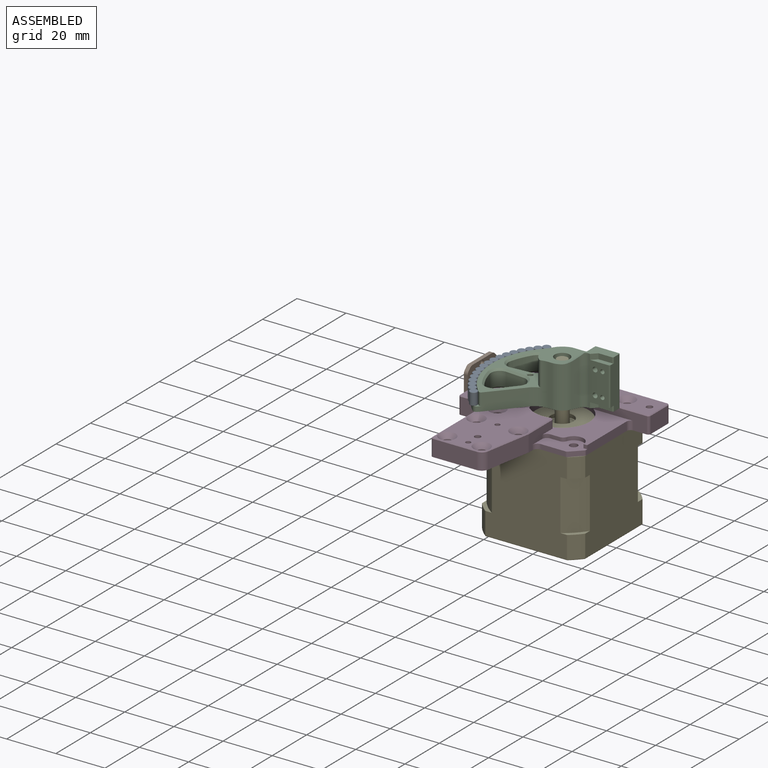
[diagram: assembled view]
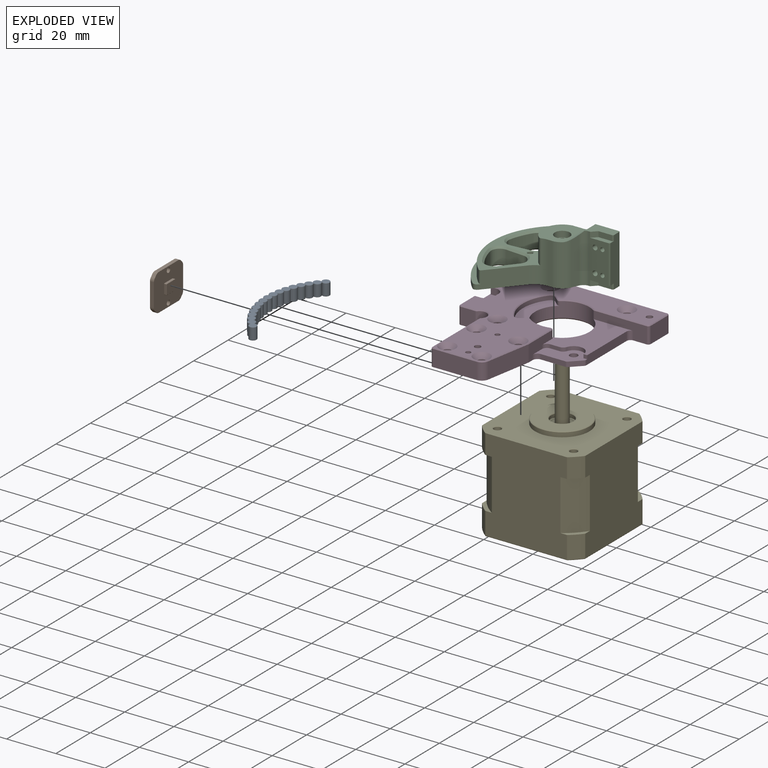
[diagram: exploded view]
FCSTD DOCUMENT  (FreeCAD 1.2R45225 (Git))
Label: Assembly_Actuator
License: All rights reserved
LicenseURL: https://en.wikipedia.org/wiki/All_rights_reserved
objects: App::Link×29, Part::FeaturePython×12, App::Point×4, Assembly::AssemblyLink×3, Assembly::JointGroup×1, App::DocumentObjectGroup×1, Assembly::AssemblyObject×1
note: 12 computed .brp shape members not serialized (recipe doc carries the construction recipe); baked Part::Feature solids carry a one-line shape summary decoded from their .brp
EXTERNAL_REF file=MotorHorn.FCStd obj=Body
EXTERNAL_REF file=StepperMotorNema17.FCStd obj=Part
EXTERNAL_REF file=EncoderMagnetArray.FCStd obj=Body
EXTERNAL_REF file=MT6835.FCStd obj=Body
EXTERNAL_REF file=Assembly_LinkageUnit.FCStd obj=Assembly
EXTERNAL_REF file=Assembly_LinkageUnit.FCStd obj=LinkageRod
EXTERNAL_REF file=Assembly_LinkageUnit.FCStd obj=LinkageRod001
EXTERNAL_REF file=Assembly_LinkageUnit.FCStd obj=RubberBandCollet001
EXTERNAL_REF file=Assembly_LinkageUnit.FCStd obj=RubberBandCollet
EXTERNAL_REF file=Assembly_LinkageUnit.FCStd obj=RubberBandCollet002
EXTERNAL_REF file=Assembly_LinkageUnit.FCStd obj=RubberBandCollet003
EXTERNAL_REF file=MotorMount.FCStd obj=Body
EXTERNAL_REF file=Assembly_LinkageUnit.FCStd obj=BallJointPlateAsm
EXTERNAL_REF file=Assembly_BallJointPlate.FCStd obj=BallJointPlate
EXTERNAL_REF file=Assembly_BallJointPlate.FCStd obj=Ball
EXTERNAL_REF file=Assembly_BallJointPlate.FCStd obj=Ball001
EXTERNAL_REF file=Assembly_BallJointPlate.FCStd obj=RubberBand
EXTERNAL_REF file=Assembly_BallJointPlate.FCStd obj=RubberBand001
EXTERNAL_REF file=Assembly_BallJointPlate.FCStd obj=CrimpBead
EXTERNAL_REF file=Assembly_BallJointPlate.FCStd obj=CrimpBead001
EXTERNAL_REF file=Assembly_BallJointPlate.FCStd obj=CrimpBead002
EXTERNAL_REF file=Assembly_BallJointPlate.FCStd obj=CrimpBead003
EXTERNAL_REF file=Assembly_LinkageUnit.FCStd obj=BallJointPlateAsm001

FEATURE [App::Point] Origin001
  Role = Origin
FEATURE [Assembly::JointGroup] Joints
FEATURE [App::Link] MotorHorn
  LinkPlacement = pos=(8.34465e-06,1.54972e-05,-10) rot=(0,0,1;0rad)
  LinkedObject = -> <external MotorHorn.FCStd>#Body
  Placement = pos=(8.34465e-06,1.54972e-05,-10) rot=(0,0,1;0rad)
FEATURE [App::Link] StepperMotorNema17
  LinkPlacement = pos=(1.13144e-05,-3.1139e-06,-55.5) rot=(0,0,1;1.5708rad)
  LinkedObject = -> <external StepperMotorNema17.FCStd>#Part
  Placement = pos=(1.13144e-05,-3.1139e-06,-55.5) rot=(0,0,1;1.5708rad)
FEATURE [App::Link] EncoderMAgnetArray  label="EncoderMagnetArray"
  LinkPlacement = pos=(9.53674e-07,9.23872e-07,-8.00001) rot=(0,0,1;0rad)
  LinkedObject = -> <external EncoderMagnetArray.FCStd>#Body
  Placement = pos=(9.53674e-07,9.23872e-07,-8.00001) rot=(0,0,1;0rad)
FEATURE [App::Link] MT6835
  LinkPlacement = pos=(-32.5,1.41501e-05,-10) rot=(0,1,0;1.5708rad)
  LinkedObject = -> <external MT6835.FCStd>#Body
  Placement = pos=(-32.5,1.41501e-05,-10) rot=(0,1,0;1.5708rad)
FEATURE [App::Point] Origin003
  Role = Origin
FEATURE [App::Link] LinkageRod  label="LinkageRod1"
  LinkPlacement = pos=(8.5,0,0) rot=(0,0,1;0rad)
  LinkedObject = -> <external Assembly_LinkageUnit.FCStd>#LinkageRod
  Placement = pos=(8.5,0,0) rot=(0,0,1;0rad)
FEATURE [App::Link] LinkageRod001  label="LinkageRod2"
  LinkPlacement = pos=(-8.5,0,0) rot=(0,0,1;0rad)
  LinkedObject = -> <external Assembly_LinkageUnit.FCStd>#LinkageRod001
  Placement = pos=(-8.5,0,0) rot=(0,0,1;0rad)
FEATURE [App::Link] RubberBandCollet001  label="RubberBandCollet1"
  LinkPlacement = pos=(-8.5,24.5,5.51344e-07) rot=(0,0.707107,0.707107;3.14159rad)
  LinkedObject = -> <external Assembly_LinkageUnit.FCStd>#RubberBandCollet001
  Placement = pos=(-8.5,24.5,5.51344e-07) rot=(0,0.707107,0.707107;3.14159rad)
FEATURE [App::Link] RubberBandCollet  label="RubberBandCollet2"
  LinkPlacement = pos=(8.5,24.5,4.02331e-07) rot=(0,0.707107,0.707107;3.14159rad)
  LinkedObject = -> <external Assembly_LinkageUnit.FCStd>#RubberBandCollet
  Placement = pos=(8.5,24.5,4.02331e-07) rot=(0,0.707107,0.707107;3.14159rad)
FEATURE [App::Link] RubberBandCollet002  label="RubberBandCollet3"
  LinkPlacement = pos=(-8.5,-24.5,-1.1921e-07) rot=(1,0,0;1.5708rad)
  LinkedObject = -> <external Assembly_LinkageUnit.FCStd>#RubberBandCollet002
  Placement = pos=(-8.5,-24.5,-1.1921e-07) rot=(1,0,0;1.5708rad)
FEATURE [App::Link] RubberBandCollet003  label="RubberBandCollet4"
  LinkPlacement = pos=(8.5,-24.5,9.98377e-07) rot=(-1,0,0;1.5708rad)
  LinkedObject = -> <external Assembly_LinkageUnit.FCStd>#RubberBandCollet003
  Placement = pos=(8.5,-24.5,9.98377e-07) rot=(-1,0,0;1.5708rad)
FEATURE [App::Link] MotorMount
  LinkPlacement = pos=(0,0,-10.5) rot=(0.707107,0.707107,0;3.14159rad)
  LinkedObject = -> <external MotorMount.FCStd>#Body
  Placement = pos=(0,0,-10.5) rot=(0.707107,0.707107,0;3.14159rad)
FEATURE [Part::FeaturePython] Screw  label="M3x10-Screw"  # WARN: FeaturePython — macro-defined, semantics opaque (R4)
  BaseObject = -> MotorMount [Fillet020.Edge284]
  Diameter = 3
  Invert = false
  LeftHanded = false
  Length = 1
  LengthCustom = 10
  MatchOuter = false
  OffsetAngle = 0
  Placement = pos=(15.5,15.5,-10.5) rot=(1.0625,0,0;0rad)
  Thread = false
  Type = 55
FEATURE [Part::FeaturePython] Screw001  label="M3x10-Screw008"  # WARN: FeaturePython — macro-defined, semantics opaque (R4)
  BaseObject = -> MotorMount [Fillet020.Edge282]
  Diameter = 3
  Invert = false
  LeftHanded = false
  Length = 1
  LengthCustom = 10
  MatchOuter = false
  OffsetAngle = 0
  Placement = pos=(-15.5,15.5,-10.5) rot=(1.0625,0,0;0rad)
  Thread = false
  Type = 55
FEATURE [Part::FeaturePython] Screw002  label="M3x10-Screw009"  # WARN: FeaturePython — macro-defined, semantics opaque (R4)
  BaseObject = -> MotorMount [Fillet020.Edge262]
  Diameter = 3
  Invert = false
  LeftHanded = false
  Length = 1
  LengthCustom = 10
  MatchOuter = false
  OffsetAngle = 0
  Placement = pos=(-15.5,-15.5,-10.5) rot=(1.0625,0,0;0rad)
  Thread = false
  Type = 55
FEATURE [Part::FeaturePython] Screw003  label="M3x6-Screw"  # WARN: FeaturePython — macro-defined, semantics opaque (R4)
  BaseObject = -> MotorMount [Fillet020.Edge150]
  Diameter = 3
  Invert = false
  LeftHanded = false
  Length = 8
  LengthCustom = 6
  MatchOuter = false
  Offset = 1
  OffsetAngle = 0
  Placement = pos=(15.5,-15.5,-14.5) rot=(1.0625,0,0;0rad)
  Thread = false
  Type = 55
FEATURE [Part::FeaturePython] Pin  label="2 mmx8-Pin"  # WARN: FeaturePython — macro-defined, semantics opaque (R4)
  BaseObject = -> LinkageUnit [BallJointPlate.Fillet001.;#32c:1;:H36d,E.Edge55]
  Diameter = 3
  Invert = false
  LeftHanded = false
  Length = 2
  LengthCustom = 8
  OffsetAngle = 0
  Placement = pos=(12,0.299999,4.75) rot=(1,0,0;1.5708rad)
  Thread = false
  Type = 9
FEATURE [Part::FeaturePython] Pin001  label="2 mmx8-Pin012"  # WARN: FeaturePython — macro-defined, semantics opaque (R4)
  BaseObject = -> LinkageUnit [BallJointPlate.Fillet001.;#32e:1;:H36d,E.Edge57]
  Diameter = 3
  Invert = true
  LeftHanded = false
  Length = 2
  LengthCustom = 8
  OffsetAngle = 0
  Placement = pos=(12,0.300001,-4.75) rot=(1,0,0;1.5708rad)
  Thread = false
  Type = 9
FEATURE [Part::FeaturePython] Screw004  label="M2x8-Screw"  # WARN: FeaturePython — macro-defined, semantics opaque (R4)
  BaseObject = -> LinkageUnit [BallJointPlate.Fillet001.;#32c:2;:H36d,E.Edge60]
  Diameter = 1
  Invert = false
  LeftHanded = false
  Length = 4
  LengthCustom = 8
  MatchOuter = false
  OffsetAngle = 0
  Placement = pos=(15,0.299999,4.75) rot=(1,0,0;1.5708rad)
  Thread = false
  Type = 57
FEATURE [Part::FeaturePython] Screw005  label="M2x8-Screw009"  # WARN: FeaturePython — macro-defined, semantics opaque (R4)
  BaseObject = -> LinkageUnit [BallJointPlate.Fillet001.;#32e:2;:H36d,E.Edge62]
  Diameter = 1
  Invert = true
  LeftHanded = false
  Length = 4
  LengthCustom = 8
  MatchOuter = false
  OffsetAngle = 0
  Placement = pos=(15,0.300001,-4.75) rot=(1,0,0;1.5708rad)
  Thread = false
  Type = 57
FEATURE [Part::FeaturePython] Screw006  label="M2x8-Screw004"  # WARN: FeaturePython — macro-defined, semantics opaque (R4)
  BaseObject = -> MT6835 [Chamfer001.Edge90]
  Diameter = 1
  Invert = true
  LeftHanded = false
  Length = 4
  LengthCustom = 8
  MatchOuter = false
  OffsetAngle = 0
  Placement = pos=(-34.1,1.41501e-05,-16) rot=(0,-1,0;1.5708rad)
  Thread = false
  Type = 57
FEATURE [Part::FeaturePython] Pin002  label="2 mmx8-Pin011"  # WARN: FeaturePython — macro-defined, semantics opaque (R4)
  BaseObject = -> MotorHorn [Chamfer008.Edge299]
  Diameter = 3
  Invert = false
  LeftHanded = false
  Length = 2
  LengthCustom = 8
  Offset = -0.5
  OffsetAngle = 0
  Placement = pos=(-13,1.54972e-05,-3.75001) rot=(0,0,1;0rad)
  Thread = false
  Type = 9
FEATURE [Part::FeaturePython] Screw007  label="M3x6-Screw003"  # WARN: FeaturePython — macro-defined, semantics opaque (R4)
  BaseObject = -> MotorHorn [Chamfer008.Edge112]
  Diameter = 6
  Invert = true
  LeftHanded = false
  Length = 4
  LengthCustom = 6
  MatchOuter = false
  OffsetAngle = 0
  Placement = pos=(8.34465e-06,7.90002,1.99999) rot=(-1,0,0;1.5708rad)
  Thread = false
  Type = 70
FEATURE [Part::FeaturePython] Screw008  label="M3x6-Screw004"  # WARN: FeaturePython — macro-defined, semantics opaque (R4)
  BaseObject = -> MotorHorn [Chamfer008.Edge116]
  Diameter = 6
  Invert = true
  LeftHanded = false
  Length = 4
  LengthCustom = 6
  MatchOuter = false
  OffsetAngle = 0
  Placement = pos=(8.34465e-06,7.90002,-7.00001) rot=(-1,0,0;1.5708rad)
  Thread = false
  Type = 70
FEATURE [App::DocumentObjectGroup] Group  label="Fasteners"
  Group = -> [Screw,Screw001,Screw002,Screw003,Pin,Pin001,Screw004,Screw005,Screw006,Pin002,Screw007,Screw008]
FEATURE [App::Point] Origin005  label="Origin006"
  Role = Origin
FEATURE [App::Link] BallJointPlate
  LinkPlacement = pos=(0,0,-1.9) rot=(0,0,1;0rad)
  LinkedObject = -> <external Assembly_BallJointPlate.FCStd>#BallJointPlate
  Placement = pos=(0,0,-1.9) rot=(0,0,1;0rad)
FEATURE [App::Link] Ball  label="Ball1"
  LinkPlacement = pos=(8.5,0,0) rot=(0,0,1;0rad)
  LinkedObject = -> <external Assembly_BallJointPlate.FCStd>#Ball
  Placement = pos=(8.5,0,0) rot=(0,0,1;0rad)
FEATURE [App::Link] Ball001  label="Ball2"
  LinkPlacement = pos=(-8.5,0,0) rot=(0,0,1;0rad)
  LinkedObject = -> <external Assembly_BallJointPlate.FCStd>#Ball001
  Placement = pos=(-8.5,0,0) rot=(0,0,1;0rad)
FEATURE [App::Link] RubberBand  label="RubberBand1"
  LinkPlacement = pos=(8.5,0,13.35) rot=(-0.57735,0.57735,0.57735;4.18879rad)
  LinkedObject = -> <external Assembly_BallJointPlate.FCStd>#RubberBand
  Placement = pos=(8.5,0,13.35) rot=(-0.57735,0.57735,0.57735;4.18879rad)
FEATURE [App::Link] RubberBand001  label="RubberBand2"
  LinkPlacement = pos=(-8.5,0,13.35) rot=(0.57735,0.57735,0.57735;2.0944rad)
  LinkedObject = -> <external Assembly_BallJointPlate.FCStd>#RubberBand001
  Placement = pos=(-8.5,0,13.35) rot=(0.57735,0.57735,0.57735;2.0944rad)
FEATURE [App::Link] CrimpBead  label="CrimpBead1a"
  LinkPlacement = pos=(8.5,1.75,-2.4) rot=(0,0,1;1.5708rad)
  LinkedObject = -> <external Assembly_BallJointPlate.FCStd>#CrimpBead
  Placement = pos=(8.5,1.75,-2.4) rot=(0,0,1;1.5708rad)
FEATURE [App::Link] CrimpBead001  label="CrimpBead1b"
  LinkPlacement = pos=(8.5,-1.75,-2.4) rot=(0,0,1;1.5708rad)
  LinkedObject = -> <external Assembly_BallJointPlate.FCStd>#CrimpBead001
  Placement = pos=(8.5,-1.75,-2.4) rot=(0,0,1;1.5708rad)
FEATURE [App::Link] CrimpBead002  label="CrimpBead2a"
  LinkPlacement = pos=(-8.5,1.75,-2.4) rot=(0,0,-1;1.5708rad)
  LinkedObject = -> <external Assembly_BallJointPlate.FCStd>#CrimpBead002
  Placement = pos=(-8.5,1.75,-2.4) rot=(0,0,-1;1.5708rad)
FEATURE [App::Link] CrimpBead003  label="CrimpBead2b"
  LinkPlacement = pos=(-8.5,-1.75,-2.4) rot=(0,0,-1;1.5708rad)
  LinkedObject = -> <external Assembly_BallJointPlate.FCStd>#CrimpBead003
  Placement = pos=(-8.5,-1.75,-2.4) rot=(0,0,-1;1.5708rad)
FEATURE [Assembly::AssemblyLink] BallJointPlateAsm
  Group = -> [BallJointPlate,Ball,Ball001,RubberBand,RubberBand001,CrimpBead,CrimpBead001,CrimpBead002,CrimpBead003]
  LinkedObject = -> <external Assembly_LinkageUnit.FCStd>#BallJointPlateAsm
  Origin = -> Origin004
  Placement = pos=(0,36.25,0) rot=(1,0,0;1.5708rad)
  Rigid = true
FEATURE [App::Point] Origin007  label="Origin009"
  Role = Origin
FEATURE [App::Link] BallJointPlate001
  LinkPlacement = pos=(0,0,-1.9) rot=(0,0,1;0rad)
  LinkedObject = -> <external Assembly_BallJointPlate.FCStd>#BallJointPlate
  Placement = pos=(0,0,-1.9) rot=(0,0,1;0rad)
FEATURE [App::Link] Ball002  label="Ball001"
  LinkPlacement = pos=(8.5,0,0) rot=(0,0,1;0rad)
  LinkedObject = -> <external Assembly_BallJointPlate.FCStd>#Ball
  Placement = pos=(8.5,0,0) rot=(0,0,1;0rad)
FEATURE [App::Link] Ball003  label="Ball002"
  LinkPlacement = pos=(-8.5,0,0) rot=(0,0,1;0rad)
  LinkedObject = -> <external Assembly_BallJointPlate.FCStd>#Ball001
  Placement = pos=(-8.5,0,0) rot=(0,0,1;0rad)
FEATURE [App::Link] RubberBand002  label="RubberBand001"
  LinkPlacement = pos=(8.5,0,13.35) rot=(-0.57735,0.57735,0.57735;4.18879rad)
  LinkedObject = -> <external Assembly_BallJointPlate.FCStd>#RubberBand
  Placement = pos=(8.5,0,13.35) rot=(-0.57735,0.57735,0.57735;4.18879rad)
FEATURE [App::Link] RubberBand003  label="RubberBand002"
  LinkPlacement = pos=(-8.5,0,13.35) rot=(0.57735,0.57735,0.57735;2.0944rad)
  LinkedObject = -> <external Assembly_BallJointPlate.FCStd>#RubberBand001
  Placement = pos=(-8.5,0,13.35) rot=(0.57735,0.57735,0.57735;2.0944rad)
FEATURE [App::Link] CrimpBead004  label="CrimpBead1a001"
  LinkPlacement = pos=(8.5,1.75,-2.4) rot=(0,0,1;1.5708rad)
  LinkedObject = -> <external Assembly_BallJointPlate.FCStd>#CrimpBead
  Placement = pos=(8.5,1.75,-2.4) rot=(0,0,1;1.5708rad)
FEATURE [App::Link] CrimpBead005  label="CrimpBead1b001"
  LinkPlacement = pos=(8.5,-1.75,-2.4) rot=(0,0,1;1.5708rad)
  LinkedObject = -> <external Assembly_BallJointPlate.FCStd>#CrimpBead001
  Placement = pos=(8.5,-1.75,-2.4) rot=(0,0,1;1.5708rad)
FEATURE [App::Link] CrimpBead006  label="CrimpBead2a001"
  LinkPlacement = pos=(-8.5,1.75,-2.4) rot=(0,0,-1;1.5708rad)
  LinkedObject = -> <external Assembly_BallJointPlate.FCStd>#CrimpBead002
  Placement = pos=(-8.5,1.75,-2.4) rot=(0,0,-1;1.5708rad)
FEATURE [App::Link] CrimpBead007  label="CrimpBead2b001"
  LinkPlacement = pos=(-8.5,-1.75,-2.4) rot=(0,0,-1;1.5708rad)
  LinkedObject = -> <external Assembly_BallJointPlate.FCStd>#CrimpBead003
  Placement = pos=(-8.5,-1.75,-2.4) rot=(0,0,-1;1.5708rad)
FEATURE [Assembly::AssemblyLink] BallJointPlateAsm001  label="BallJointPlateAsm"
  Group = -> [BallJointPlate001,Ball002,Ball003,RubberBand002,RubberBand003,CrimpBead004,CrimpBead005,CrimpBead006,CrimpBead007]
  LinkedObject = -> <external Assembly_LinkageUnit.FCStd>#BallJointPlateAsm001
  Origin = -> Origin006
  Placement = pos=(0,-36.25,0) rot=(0,0.707107,0.707107;3.14159rad)
  Rigid = true
FEATURE [Assembly::AssemblyLink] LinkageUnit
  Group = -> [LinkageRod,LinkageRod001,RubberBandCollet001,RubberBandCollet,RubberBandCollet002,RubberBandCollet003,BallJointPlateAsm,BallJointPlateAsm001]
  LinkedObject = -> <external Assembly_LinkageUnit.FCStd>#Assembly
  Origin = -> Origin002
  Placement = pos=(15,-36.25,-9.53674e-07) rot=(0,1,0;1.5708rad)
  Rigid = true
FEATURE [Assembly::AssemblyObject] Assembly  label="Actuator"
  Group = -> [Joints,MotorMount,StepperMotorNema17,MotorHorn,LinkageUnit,EncoderMAgnetArray,MT6835,Screw,Screw001,Screw002,Screw003,Pin,Pin001,Screw004,Screw005,Screw006,Group,Pin002,Screw007,Screw008]
  Origin = -> Origin
  Type = Assembly

RESOLVED EXTERNAL PARTS (link-assembly join: the EXTERNAL_REF files above that resolve inside this repo's crawl, each included once):
---- part Assembly_BallJointPlate.FCStd = doc fcstd_96c2e58f8617 ----
FCSTD DOCUMENT  (FreeCAD 1.2R45225 (Git))
Label: Assembly_BallJointPlate
License: All rights reserved
objects: App::Link×9, App::FeaturePython×9, App::Point×1, Assembly::JointGroup×1, Assembly::AssemblyObject×1
EXTERNAL_REF file=BallJointPlate.FCStd obj=Body
EXTERNAL_REF file=JointBall.FCStd obj=Body
EXTERNAL_REF file=RubberBand.FCStd obj=Body
EXTERNAL_REF file=CrimpBead.FCStd obj=Body

FEATURE [App::Point] Origin001
  Role = Origin
FEATURE [App::Link] BallJointPlate
  LinkPlacement = pos=(0,0,-1.9) rot=(0,0,1;0rad)
  LinkedObject = -> <external BallJointPlate.FCStd>#Body
  Placement = pos=(0,0,-1.9) rot=(0,0,1;0rad)
FEATURE [App::FeaturePython] GroundedJoint  # Assembly grounded joint (typed FeaturePython)
  ObjectToGround = -> BallJointPlate
FEATURE [App::Link] Ball  label="Ball1"
  LinkPlacement = pos=(8.5,0,0) rot=(0,0,1;0rad)
  LinkedObject = -> <external JointBall.FCStd>#Body
  Placement = pos=(8.5,0,0) rot=(0,0,1;0rad)
FEATURE [App::Link] Ball001  label="Ball2"
  LinkPlacement = pos=(-8.5,0,0) rot=(0,0,1;0rad)
  LinkedObject = -> <external JointBall.FCStd>#Body
  Placement = pos=(-8.5,0,0) rot=(0,0,1;0rad)
FEATURE [App::FeaturePython] Joint  label="ball1"  # Assembly joint (typed FeaturePython)
  Angle = 0
  AngleMax = 0
  AngleMin = 0
  Detach1 = false
  Detach2 = false
  Distance = 0
  Distance2 = 0
  EnableAngleMax = false
  EnableAngleMin = false
  EnableLengthMax = false
  EnableLengthMin = false
  JointType = 0 (Fixed)
  LengthMax = 0
  LengthMin = 0
  Offset1 = pos=(8.5,0,1.9) rot=(0,0,1;0rad)
  Placement1 = pos=(8.5,0,1.9) rot=(0,0,1;0rad)
  Reference1 = -> BallJointPlate
  Reference2 = -> Ball
  Suppressed = false
FEATURE [App::FeaturePython] Joint001  label="ball2"  # Assembly joint (typed FeaturePython)
  Angle = 0
  AngleMax = 0
  AngleMin = 0
  Detach1 = false
  Detach2 = false
  Distance = 0
  Distance2 = 0
  EnableAngleMax = false
  EnableAngleMin = false
  EnableLengthMax = false
  EnableLengthMin = false
  JointType = 0 (Fixed)
  LengthMax = 0
  LengthMin = 0
  Offset1 = pos=(-8.5,0,1.9) rot=(0,0,1;0rad)
  Placement1 = pos=(-8.5,0,1.9) rot=(0,0,1;0rad)
  Reference1 = -> BallJointPlate
  Reference2 = -> Ball001
  Suppressed = false
FEATURE [App::Link] RubberBand  label="RubberBand1"
  LinkPlacement = pos=(8.5,0,13.35) rot=(-0.57735,0.57735,0.57735;4.18879rad)
  LinkedObject = -> <external RubberBand.FCStd>#Body
  Placement = pos=(8.5,0,13.35) rot=(-0.57735,0.57735,0.57735;4.18879rad)
FEATURE [App::Link] RubberBand001  label="RubberBand2"
  LinkPlacement = pos=(-8.5,0,13.35) rot=(0.57735,0.57735,0.57735;2.0944rad)
  LinkedObject = -> <external RubberBand.FCStd>#Body
  Placement = pos=(-8.5,0,13.35) rot=(0.57735,0.57735,0.57735;2.0944rad)
FEATURE [App::FeaturePython] Joint002  label="rubber_band1"  # Assembly joint (typed FeaturePython)
  Angle = 0
  AngleMax = 0
  AngleMin = 0
  Detach1 = false
  Detach2 = false
  Distance = 0
  Distance2 = 0
  EnableAngleMax = false
  EnableAngleMin = false
  EnableLengthMax = false
  EnableLengthMin = false
  JointType = 0 (Fixed)
  LengthMax = 0
  LengthMin = 0
  Offset2 = pos=(8.5,0,15.25) rot=(0.57735,-0.57735,-0.57735;2.0944rad)
  Placement2 = pos=(8.5,0,15.25) rot=(0.57735,-0.57735,-0.57735;2.0944rad)
  Reference1 = -> RubberBand
  Reference2 = -> BallJointPlate
  Suppressed = false
FEATURE [App::FeaturePython] Joint003  label="rubber_band2"  # Assembly joint (typed FeaturePython)
  Angle = 0
  AngleMax = 0
  AngleMin = 0
  Detach1 = false
  Detach2 = false
  Distance = 0
  Distance2 = 0
  EnableAngleMax = false
  EnableAngleMin = false
  EnableLengthMax = false
  EnableLengthMin = false
  JointType = 0 (Fixed)
  LengthMax = 0
  LengthMin = 0
  Offset2 = pos=(-8.5,0,15.25) rot=(0.57735,0.57735,0.57735;2.0944rad)
  Placement2 = pos=(-8.5,0,15.25) rot=(0.57735,0.57735,0.57735;2.0944rad)
  Reference1 = -> RubberBand001
  Reference2 = -> BallJointPlate
  Suppressed = false
FEATURE [App::Link] CrimpBead  label="CrimpBead1a"
  LinkPlacement = pos=(8.5,1.75,-2.4) rot=(0,0,1;1.5708rad)
  LinkedObject = -> <external CrimpBead.FCStd>#Body
  Placement = pos=(8.5,1.75,-2.4) rot=(0,0,1;1.5708rad)
FEATURE [App::Link] CrimpBead001  label="CrimpBead1b"
  LinkPlacement = pos=(8.5,-1.75,-2.4) rot=(0,0,1;1.5708rad)
  LinkedObject = -> <external CrimpBead.FCStd>#Body
  Placement = pos=(8.5,-1.75,-2.4) rot=(0,0,1;1.5708rad)
FEATURE [App::FeaturePython] Joint004  label="crimp_bead1a"  # Assembly joint (typed FeaturePython)
  Angle = 0
  AngleMax = 0
  AngleMin = 0
  Detach1 = false
  Detach2 = false
  Distance = 0
  Distance2 = 0
  EnableAngleMax = false
  EnableAngleMin = false
  EnableLengthMax = false
  EnableLengthMin = false
  JointType = 0 (Fixed)
  LengthMax = 0
  LengthMin = 0
  Offset2 = pos=(8.5,1.75,-0.5) rot=(0,0,1;1.5708rad)
  Placement2 = pos=(8.5,1.75,-0.5) rot=(0,0,1;1.5708rad)
  Reference1 = -> CrimpBead
  Reference2 = -> BallJointPlate
  Suppressed = false
FEATURE [App::FeaturePython] Joint005  label="crimp_bead1b"  # Assembly joint (typed FeaturePython)
  Angle = 0
  AngleMax = 0
  AngleMin = 0
  Detach1 = false
  Detach2 = false
  Distance = 0
  Distance2 = 0
  EnableAngleMax = false
  EnableAngleMin = false
  EnableLengthMax = false
  EnableLengthMin = false
  JointType = 0 (Fixed)
  LengthMax = 0
  LengthMin = 0
  Offset2 = pos=(8.5,-1.75,-0.5) rot=(0,0,1;1.5708rad)
  Placement2 = pos=(8.5,-1.75,-0.5) rot=(0,0,1;1.5708rad)
  Reference1 = -> CrimpBead001
  Reference2 = -> BallJointPlate
  Suppressed = false
FEATURE [App::Link] CrimpBead002  label="CrimpBead2a"
  LinkPlacement = pos=(-8.5,1.75,-2.4) rot=(0,0,-1;1.5708rad)
  LinkedObject = -> <external CrimpBead.FCStd>#Body
  Placement = pos=(-8.5,1.75,-2.4) rot=(0,0,-1;1.5708rad)
FEATURE [App::Link] CrimpBead003  label="CrimpBead2b"
  LinkPlacement = pos=(-8.5,-1.75,-2.4) rot=(0,0,-1;1.5708rad)
  LinkedObject = -> <external CrimpBead.FCStd>#Body
  Placement = pos=(-8.5,-1.75,-2.4) rot=(0,0,-1;1.5708rad)
FEATURE [App::FeaturePython] Joint006  label="crimp_bead2b"  # Assembly joint (typed FeaturePython)
  Angle = 0
  AngleMax = 0
  AngleMin = 0
  Detach1 = false
  Detach2 = false
  Distance = 0
  Distance2 = 0
  EnableAngleMax = false
  EnableAngleMin = false
  EnableLengthMax = false
  EnableLengthMin = false
  JointType = 0 (Fixed)
  LengthMax = 0
  LengthMin = 0
  Offset2 = pos=(-8.5,-1.75,-0.5) rot=(0,0,-1;1.5708rad)
  Placement2 = pos=(-8.5,-1.75,-0.5) rot=(0,0,-1;1.5708rad)
  Reference1 = -> CrimpBead003
  Reference2 = -> BallJointPlate
  Suppressed = false
FEATURE [App::FeaturePython] Joint007  label="Fixed009"  # Assembly joint (typed FeaturePython)
  Angle = 0
  AngleMax = 0
  AngleMin = 0
  Detach1 = false
  Detach2 = false
  Distance = 0
  Distance2 = 0
  EnableAngleMax = false
  EnableAngleMin = false
  EnableLengthMax = false
  EnableLengthMin = false
  JointType = 0 (Fixed)
  LengthMax = 0
  LengthMin = 0
  Offset2 = pos=(-8.5,1.75,-0.5) rot=(0,0,-1;1.5708rad)
  Placement2 = pos=(-8.5,1.75,-0.5) rot=(0,0,-1;1.5708rad)
  Reference1 = -> CrimpBead002
  Reference2 = -> BallJointPlate
  Suppressed = false
FEATURE [Assembly::JointGroup] Joints
  Group = -> [GroundedJoint,Joint,Joint001,Joint002,Joint003,Joint004,Joint005,Joint006,Joint007]
FEATURE [Assembly::AssemblyObject] Assembly  label="BallJointPlateAsm"
  Group = -> [Joints,BallJointPlate,GroundedJoint,Ball,Ball001,Joint,Joint001,RubberBand,RubberBand001,Joint002,Joint003,CrimpBead,CrimpBead001,Joint004,Joint005,CrimpBead002,CrimpBead003,Joint006,Joint007]
  Origin = -> Origin
  Type = Assembly
---- part Assembly_LinkageUnit.FCStd = doc fcstd_ba4d1da7e42f ----
FCSTD DOCUMENT  (FreeCAD 1.2R45225 (Git))
Label: Assembly_LinkageUnit
License: All rights reserved
LicenseURL: https://en.wikipedia.org/wiki/All_rights_reserved
objects: App::Link×24, App::FeaturePython×8, App::Point×3, Assembly::AssemblyLink×2, Assembly::JointGroup×1, Assembly::AssemblyObject×1
EXTERNAL_REF file=RubberBandCollet.FCStd obj=Body
EXTERNAL_REF file=LinkageRod.FCStd obj=Body
EXTERNAL_REF file=Assembly_BallJointPlate.FCStd obj=Assembly
EXTERNAL_REF file=Assembly_BallJointPlate.FCStd obj=BallJointPlate
EXTERNAL_REF file=Assembly_BallJointPlate.FCStd obj=Ball
EXTERNAL_REF file=Assembly_BallJointPlate.FCStd obj=Ball001
EXTERNAL_REF file=Assembly_BallJointPlate.FCStd obj=RubberBand
EXTERNAL_REF file=Assembly_BallJointPlate.FCStd obj=RubberBand001
EXTERNAL_REF file=Assembly_BallJointPlate.FCStd obj=CrimpBead
EXTERNAL_REF file=Assembly_BallJointPlate.FCStd obj=CrimpBead001
EXTERNAL_REF file=Assembly_BallJointPlate.FCStd obj=CrimpBead002
EXTERNAL_REF file=Assembly_BallJointPlate.FCStd obj=CrimpBead003

FEATURE [App::Point] Origin001
  Role = Origin
FEATURE [App::Link] RubberBandCollet  label="RubberBandCollet2"
  LinkPlacement = pos=(8.5,24.5,4.02331e-07) rot=(0,0.707107,0.707107;3.14159rad)
  LinkedObject = -> <external RubberBandCollet.FCStd>#Body
  Placement = pos=(8.5,24.5,4.02331e-07) rot=(0,0.707107,0.707107;3.14159rad)
FEATURE [App::Link] RubberBandCollet001  label="RubberBandCollet1"
  LinkPlacement = pos=(-8.5,24.5,5.51344e-07) rot=(0,0.707107,0.707107;3.14159rad)
  LinkedObject = -> <external RubberBandCollet.FCStd>#Body
  Placement = pos=(-8.5,24.5,5.51344e-07) rot=(0,0.707107,0.707107;3.14159rad)
FEATURE [App::Link] RubberBandCollet002  label="RubberBandCollet3"
  LinkPlacement = pos=(-8.5,-24.5,-1.1921e-07) rot=(1,0,0;1.5708rad)
  LinkedObject = -> <external RubberBandCollet.FCStd>#Body
  Placement = pos=(-8.5,-24.5,-1.1921e-07) rot=(1,0,0;1.5708rad)
FEATURE [App::Link] RubberBandCollet003  label="RubberBandCollet4"
  LinkPlacement = pos=(8.5,-24.5,9.98377e-07) rot=(-1,0,0;1.5708rad)
  LinkedObject = -> <external RubberBandCollet.FCStd>#Body
  Placement = pos=(8.5,-24.5,9.98377e-07) rot=(-1,0,0;1.5708rad)
FEATURE [App::Link] LinkageRod  label="LinkageRod1"
  LinkPlacement = pos=(8.5,0,0) rot=(0,0,1;0rad)
  LinkedObject = -> <external LinkageRod.FCStd>#Body
  Placement = pos=(8.5,0,0) rot=(0,0,1;0rad)
FEATURE [App::Link] LinkageRod001  label="LinkageRod2"
  LinkPlacement = pos=(-8.5,0,0) rot=(0,0,1;0rad)
  LinkedObject = -> <external LinkageRod.FCStd>#Body
  Placement = pos=(-8.5,0,0) rot=(0,0,1;0rad)
FEATURE [App::Point] Origin003
  Role = Origin
FEATURE [App::Link] BallJointPlate002  label="BallJointPlate"
  LinkPlacement = pos=(0,0,-1.9) rot=(0,0,1;0rad)
  LinkedObject = -> <external Assembly_BallJointPlate.FCStd>#BallJointPlate
  Placement = pos=(0,0,-1.9) rot=(0,0,1;0rad)
FEATURE [App::Link] Ball004  label="Ball001"
  LinkPlacement = pos=(8.5,0,0) rot=(0,0,1;0rad)
  LinkedObject = -> <external Assembly_BallJointPlate.FCStd>#Ball
  Placement = pos=(8.5,0,0) rot=(0,0,1;0rad)
FEATURE [App::Link] Ball005  label="Ball002"
  LinkPlacement = pos=(-8.5,0,0) rot=(0,0,1;0rad)
  LinkedObject = -> <external Assembly_BallJointPlate.FCStd>#Ball001
  Placement = pos=(-8.5,0,0) rot=(0,0,1;0rad)
FEATURE [App::Link] RubberBand004  label="RubberBand001"
  LinkPlacement = pos=(8.5,0,13.35) rot=(-0.57735,0.57735,0.57735;4.18879rad)
  LinkedObject = -> <external Assembly_BallJointPlate.FCStd>#RubberBand
  Placement = pos=(8.5,0,13.35) rot=(-0.57735,0.57735,0.57735;4.18879rad)
FEATURE [App::Link] RubberBand005  label="RubberBand002"
  LinkPlacement = pos=(-8.5,0,13.35) rot=(0.57735,0.57735,0.57735;2.0944rad)
  LinkedObject = -> <external Assembly_BallJointPlate.FCStd>#RubberBand001
  Placement = pos=(-8.5,0,13.35) rot=(0.57735,0.57735,0.57735;2.0944rad)
FEATURE [App::Link] CrimpBead  label="CrimpBead1a"
  LinkPlacement = pos=(8.5,1.75,-2.4) rot=(0,0,1;1.5708rad)
  LinkedObject = -> <external Assembly_BallJointPlate.FCStd>#CrimpBead
  Placement = pos=(8.5,1.75,-2.4) rot=(0,0,1;1.5708rad)
FEATURE [App::Link] CrimpBead001  label="CrimpBead1b"
  LinkPlacement = pos=(8.5,-1.75,-2.4) rot=(0,0,1;1.5708rad)
  LinkedObject = -> <external Assembly_BallJointPlate.FCStd>#CrimpBead001
  Placement = pos=(8.5,-1.75,-2.4) rot=(0,0,1;1.5708rad)
FEATURE [App::Link] CrimpBead002  label="CrimpBead2a"
  LinkPlacement = pos=(-8.5,1.75,-2.4) rot=(0,0,-1;1.5708rad)
  LinkedObject = -> <external Assembly_BallJointPlate.FCStd>#CrimpBead002
  Placement = pos=(-8.5,1.75,-2.4) rot=(0,0,-1;1.5708rad)
FEATURE [App::Link] CrimpBead003  label="CrimpBead2b"
  LinkPlacement = pos=(-8.5,-1.75,-2.4) rot=(0,0,-1;1.5708rad)
  LinkedObject = -> <external Assembly_BallJointPlate.FCStd>#CrimpBead003
  Placement = pos=(-8.5,-1.75,-2.4) rot=(0,0,-1;1.5708rad)
FEATURE [Assembly::AssemblyLink] BallJointPlateAsm
  Group = -> [BallJointPlate002,Ball004,Ball005,RubberBand004,RubberBand005,CrimpBead,CrimpBead001,CrimpBead002,CrimpBead003]
  LinkedObject = -> <external Assembly_BallJointPlate.FCStd>#Assembly
  Origin = -> Origin002
  Placement = pos=(0,36.25,0) rot=(1,0,0;1.5708rad)
  Rigid = true
FEATURE [App::Point] Origin005  label="Origin006"
  Role = Origin
FEATURE [App::Link] BallJointPlate003  label="BallJointPlate001"
  LinkPlacement = pos=(0,0,-1.9) rot=(0,0,1;0rad)
  LinkedObject = -> <external Assembly_BallJointPlate.FCStd>#BallJointPlate
  Placement = pos=(0,0,-1.9) rot=(0,0,1;0rad)
FEATURE [App::Link] Ball006  label="Ball003"
  LinkPlacement = pos=(8.5,0,0) rot=(0,0,1;0rad)
  LinkedObject = -> <external Assembly_BallJointPlate.FCStd>#Ball
  Placement = pos=(8.5,0,0) rot=(0,0,1;0rad)
FEATURE [App::Link] Ball007  label="Ball004"
  LinkPlacement = pos=(-8.5,0,0) rot=(0,0,1;0rad)
  LinkedObject = -> <external Assembly_BallJointPlate.FCStd>#Ball001
  Placement = pos=(-8.5,0,0) rot=(0,0,1;0rad)
FEATURE [App::Link] RubberBand006  label="RubberBand003"
  LinkPlacement = pos=(8.5,0,13.35) rot=(-0.57735,0.57735,0.57735;4.18879rad)
  LinkedObject = -> <external Assembly_BallJointPlate.FCStd>#RubberBand
  Placement = pos=(8.5,0,13.35) rot=(-0.57735,0.57735,0.57735;4.18879rad)
FEATURE [App::Link] RubberBand007  label="RubberBand004"
  LinkPlacement = pos=(-8.5,0,13.35) rot=(0.57735,0.57735,0.57735;2.0944rad)
  LinkedObject = -> <external Assembly_BallJointPlate.FCStd>#RubberBand001
  Placement = pos=(-8.5,0,13.35) rot=(0.57735,0.57735,0.57735;2.0944rad)
FEATURE [App::Link] CrimpBead004  label="CrimpBead1a001"
  LinkPlacement = pos=(8.5,1.75,-2.4) rot=(0,0,1;1.5708rad)
  LinkedObject = -> <external Assembly_BallJointPlate.FCStd>#CrimpBead
  Placement = pos=(8.5,1.75,-2.4) rot=(0,0,1;1.5708rad)
FEATURE [App::Link] CrimpBead005  label="CrimpBead1b001"
  LinkPlacement = pos=(8.5,-1.75,-2.4) rot=(0,0,1;1.5708rad)
  LinkedObject = -> <external Assembly_BallJointPlate.FCStd>#CrimpBead001
  Placement = pos=(8.5,-1.75,-2.4) rot=(0,0,1;1.5708rad)
FEATURE [App::Link] CrimpBead006  label="CrimpBead2a001"
  LinkPlacement = pos=(-8.5,1.75,-2.4) rot=(0,0,-1;1.5708rad)
  LinkedObject = -> <external Assembly_BallJointPlate.FCStd>#CrimpBead002
  Placement = pos=(-8.5,1.75,-2.4) rot=(0,0,-1;1.5708rad)
FEATURE [App::Link] CrimpBead007  label="CrimpBead2b001"
  LinkPlacement = pos=(-8.5,-1.75,-2.4) rot=(0,0,-1;1.5708rad)
  LinkedObject = -> <external Assembly_BallJointPlate.FCStd>#CrimpBead003
  Placement = pos=(-8.5,-1.75,-2.4) rot=(0,0,-1;1.5708rad)
FEATURE [Assembly::AssemblyLink] BallJointPlateAsm001  label="BallJointPlateAsm"
  Group = -> [BallJointPlate003,Ball006,Ball007,RubberBand006,RubberBand007,CrimpBead004,CrimpBead005,CrimpBead006,CrimpBead007]
  LinkedObject = -> <external Assembly_BallJointPlate.FCStd>#Assembly
  Origin = -> Origin004
  Placement = pos=(0,-36.25,0) rot=(0,0.707107,0.707107;3.14159rad)
  Rigid = true
FEATURE [App::FeaturePython] GroundedJoint  label="GroundedJoint001"  # Assembly grounded joint (typed FeaturePython)
  ObjectToGround = -> BallJointPlateAsm
FEATURE [App::FeaturePython] GroundedJoint001  label="GroundedJoint002"  # Assembly grounded joint (typed FeaturePython)
  ObjectToGround = -> BallJointPlateAsm001
FEATURE [App::FeaturePython] GroundedJoint002  label="GroundedJoint003"  # Assembly grounded joint (typed FeaturePython)
  ObjectToGround = -> RubberBandCollet003
FEATURE [App::FeaturePython] GroundedJoint003  label="GroundedJoint004"  # Assembly grounded joint (typed FeaturePython)
  ObjectToGround = -> LinkageRod
FEATURE [App::FeaturePython] GroundedJoint004  label="GroundedJoint005"  # Assembly grounded joint (typed FeaturePython)
  ObjectToGround = -> LinkageRod001
FEATURE [App::FeaturePython] GroundedJoint005  label="GroundedJoint006"  # Assembly grounded joint (typed FeaturePython)
  ObjectToGround = -> RubberBandCollet001
FEATURE [App::FeaturePython] GroundedJoint006  label="GroundedJoint007"  # Assembly grounded joint (typed FeaturePython)
  ObjectToGround = -> RubberBandCollet
FEATURE [App::FeaturePython] GroundedJoint007  label="GroundedJoint008"  # Assembly grounded joint (typed FeaturePython)
  ObjectToGround = -> RubberBandCollet002
FEATURE [Assembly::JointGroup] Joints
  Group = -> [GroundedJoint,GroundedJoint001,GroundedJoint002,GroundedJoint003,GroundedJoint004,GroundedJoint005,GroundedJoint006,GroundedJoint007]
FEATURE [Assembly::AssemblyObject] Assembly  label="LinkageUnit"
  Group = -> [Joints,LinkageRod,LinkageRod001,RubberBandCollet001,RubberBandCollet,RubberBandCollet002,RubberBandCollet003,BallJointPlateAsm,BallJointPlateAsm001,GroundedJoint,GroundedJoint001,GroundedJoint002,GroundedJoint003,GroundedJoint004,GroundedJoint005,GroundedJoint006,GroundedJoint007]
  Origin = -> Origin
  Type = Assembly
---- part EncoderMagnetArray.FCStd = doc fcstd_37c021e10626 ----
FCSTD DOCUMENT  (FreeCAD 1.2R45145 (Git))
Label: EncoderMagnetArray
License: All rights reserved
LicenseURL: https://en.wikipedia.org/wiki/All_rights_reserved
objects: App::Point×1, Sketcher::SketchObject×1, PartDesign::Pad×1, PartDesign::Fillet×1, PartDesign::PolarPattern×1, PartDesign::Body×1
note: 11 computed .brp shape members not serialized (recipe doc carries the construction recipe); baked Part::Feature solids carry a one-line shape summary decoded from their .brp

FEATURE [App::Point] Origin001
  Role = Origin
FEATURE [Sketcher::SketchObject] Sketch
  ArcFitTolerance = 1e-06
  AttachmentSupport = -> [Origin]
  ExternalTypes = [0]
  FullyConstrained = true
  MakeInternals = false
  MapMode = 5
  sketch-geometry (2):
    g0: Circle CenterX=-21.2132 CenterY=21.2132 CenterZ=0 NormalX=0 NormalY=0 NormalZ=1 AngleXU=0 Radius=1.525
    g1: LineSegment [constr] StartX=-21.2132 StartY=21.2132 StartZ=0 EndX=0 EndY=0 EndZ=0
  constraints (5):
    c: Diameter(g0) = 3.05
    c: Coincident(g1,g0)
    c: Coincident(g1,g-1)
    c: Distance(g1,g1) = 30
    c: Angle(g1,g-1) = 0.785398
FEATURE [PartDesign::Pad] Pad
  Direction = (0,0,1)
  Length = 5
  Length2 = 10
  Profile = -> Sketch
  ReferenceAxis = -> Sketch [N_Axis]
  Refine = true
  SideType = 0
  Suppressed = false
  Type = 0
  Type2 = 0
FEATURE [PartDesign::Fillet] Fillet
  Base = -> Pad [Edge3,Edge2]
  BaseFeature = -> Pad
  Radius = 0.2
  Refine = true
  SupportTransform = false
  Suppressed = false
  UseAllEdges = false
FEATURE [PartDesign::PolarPattern] PolarPattern
  Angle = 90
  Axis = -> Z_Axis
  BaseFeature = -> Fillet
  Mode = 0
  Occurrences = 17
  Offset = 5.73
  Refine = true
  SpacingPattern = [0]
  Spacings = [-1,-1,-1,-1,-1,-1,-1,-1,-1,-1,-1,-1,-1,-1,-1,-1]
  Suppressed = false
  TransformMode = 1
FEATURE [PartDesign::Body] Body  label="EncoderMagnetArray"
  AllowCompound = false
  Group = -> [Sketch,Pad,Fillet,PolarPattern]
  Origin = -> Origin
  Tip = -> PolarPattern
---- part MT6835.FCStd = doc fcstd_dc484377cb47 ----
FCSTD DOCUMENT  (FreeCAD 1.2R45145 (Git))
Label: MT6835
License: All rights reserved
LicenseURL: https://en.wikipedia.org/wiki/All_rights_reserved
objects: Sketcher::SketchObject×2, PartDesign::Pad×2, PartDesign::Chamfer×2, PartDesign::Fillet×2, App::Point×1, PartDesign::Body×1
note: 23 computed .brp shape members not serialized (recipe doc carries the construction recipe); baked Part::Feature solids carry a one-line shape summary decoded from their .brp

FEATURE [App::Point] Origin001
  Role = Origin
FEATURE [Sketcher::SketchObject] Sketch
  ArcFitTolerance = 1e-06
  AttachmentSupport = -> [Origin]
  ExternalTypes = [0]
  FullyConstrained = true
  MakeInternals = false
  MapMode = 5
  sketch-geometry (7):
    g0: LineSegment StartX=-7.5 StartY=-8.5 StartZ=0 EndX=7.5 EndY=-8.5 EndZ=0
    g1: LineSegment StartX=7.5 StartY=-8.5 StartZ=0 EndX=7.5 EndY=8.5 EndZ=0
    g2: LineSegment StartX=7.5 StartY=8.5 StartZ=0 EndX=-7.5 EndY=8.5 EndZ=0
    g3: LineSegment StartX=-7.5 StartY=8.5 StartZ=0 EndX=-7.5 EndY=-8.5 EndZ=0
    g4: GeomPoint [constr] X=0 Y=0 Z=0
    g5: Circle CenterX=-6 CenterY=0 CenterZ=0 NormalX=0 NormalY=0 NormalZ=1 AngleXU=0 Radius=1
    g6: Circle CenterX=6 CenterY=0 CenterZ=0 NormalX=0 NormalY=0 NormalZ=1 AngleXU=0 Radius=1
  constraints (18):
    c: Coincident(g0,g1)
    c: Coincident(g1,g2)
    c: Coincident(g2,g3)
    c: Coincident(g3,g0)
    c: Horizontal(g0)
    c: Horizontal(g2)
    c: Vertical(g1)
    c: Vertical(g3)
    c: Symmetric(g2,g0,g4)
    c: Coincident(g4,g-1)
    c: DistanceY(g1,g1) = 17
    c: DistanceX(g2,g2) = 15
    c: PointOnObject(g5,g-1)
    c: PointOnObject(g6,g-1)
    c: Equal(g5,g6)
    c: Diameter(g6) = 2
    c: DistanceX(g5,g-1) = 6
    c: DistanceX(g-1,g6) = 6
FEATURE [PartDesign::Pad] Pad
  Direction = (0,0,1)
  Length = 1.6
  Length2 = 10
  Profile = -> Sketch
  ReferenceAxis = -> Sketch [N_Axis]
  Refine = true
  Reversed = true
  SideType = 0
  Suppressed = false
  Type = 0
  Type2 = 0
FEATURE [PartDesign::Chamfer] Chamfer
  Angle = 45
  Base = -> Pad [Edge2,Edge1,Edge5,Edge8]
  BaseFeature = -> Pad
  ChamferType = 0
  FlipDirection = false
  Refine = true
  Size = 2
  Size2 = 1
  SupportTransform = false
  Suppressed = false
  UseAllEdges = false
FEATURE [PartDesign::Fillet] Fillet
  Base = -> Chamfer [Edge2,Edge14,Edge3,Vertex14,Edge16,Edge26,Edge28,Edge27,Edge25]
  BaseFeature = -> Chamfer
  Radius = 2
  Refine = true
  SupportTransform = false
  Suppressed = false
  UseAllEdges = false
FEATURE [Sketcher::SketchObject] Sketch001
  ArcFitTolerance = 1e-06
  AttachmentSupport = -> [Fillet]
  ExternalTypes = [0]
  FullyConstrained = true
  MakeInternals = false
  MapMode = 5
  sketch-geometry (5):
    g0: LineSegment StartX=-2.1 StartY=-2.55 StartZ=0 EndX=2.1 EndY=-2.55 EndZ=0
    g1: LineSegment StartX=2.1 StartY=-2.55 StartZ=0 EndX=2.1 EndY=2.55 EndZ=0
    g2: LineSegment StartX=2.1 StartY=2.55 StartZ=0 EndX=-2.1 EndY=2.55 EndZ=0
    g3: LineSegment StartX=-2.1 StartY=2.55 StartZ=0 EndX=-2.1 EndY=-2.55 EndZ=0
    g4: GeomPoint [constr] X=0 Y=0 Z=0
  constraints (12):
    c: Coincident(g0,g1)
    c: Coincident(g1,g2)
    c: Coincident(g2,g3)
    c: Coincident(g3,g0)
    c: Horizontal(g0)
    c: Horizontal(g2)
    c: Vertical(g1)
    c: Vertical(g3)
    c: Symmetric(g2,g0,g4)
    c: Coincident(g4,g-1)
    c: DistanceY(g1,g1) = 5.1
    c: DistanceX(g2,g2) = 4.2
FEATURE [PartDesign::Pad] Pad001
  BaseFeature = -> Fillet
  Direction = (0,0,1)
  Length = 1
  Length2 = 10
  Profile = -> Sketch001
  ReferenceAxis = -> Sketch001 [N_Axis]
  Refine = true
  SideType = 0
  Suppressed = false
  Type = 0
  Type2 = 0
FEATURE [PartDesign::Fillet] Fillet001
  Base = -> Pad001 [Edge61,Edge63,Edge58,Edge59]
  BaseFeature = -> Pad001
  Radius = 0.2
  Refine = true
  SupportTransform = false
  Suppressed = false
  UseAllEdges = false
FEATURE [PartDesign::Chamfer] Chamfer001
  Angle = 45
  Base = -> Fillet001 [Edge42]
  BaseFeature = -> Fillet001
  ChamferType = 0
  FlipDirection = false
  Refine = true
  Size = 0.1
  Size2 = 1
  SupportTransform = false
  Suppressed = false
  UseAllEdges = false
FEATURE [PartDesign::Body] Body  label="MT6835"
  AllowCompound = false
  Group = -> [Sketch,Pad,Chamfer,Fillet,Sketch001,Pad001,Fillet001,Chamfer001]
  Origin = -> Origin
  Tip = -> Chamfer001
---- part MotorHorn.FCStd = doc fcstd_3777ab71ff1c ----
FCSTD DOCUMENT  (FreeCAD 1.2R45225 (Git))
Label: MotorHorn
License: All rights reserved
LicenseURL: https://en.wikipedia.org/wiki/All_rights_reserved
objects: Sketcher::SketchObject×11, PartDesign::Fillet×9, PartDesign::Pocket×9, PartDesign::Chamfer×5, App::Point×1, PartDesign::Pad×1, PartDesign::Groove×1, Part::DatumPoint×1, PartDesign::PolarPattern×1, PartDesign::Body×1
note: 100 computed .brp shape members not serialized (recipe doc carries the construction recipe); baked Part::Feature solids carry a one-line shape summary decoded from their .brp

FEATURE [App::Point] Origin001
  Role = Origin
FEATURE [Sketcher::SketchObject] Sketch
  ArcFitTolerance = 1e-06
  AttachmentSupport = -> [Origin]
  ExternalTypes = [0]
  FullyConstrained = false
  MakeInternals = false
  MapMode = 5
  sketch-geometry (19):
    g0: LineSegment StartX=-6.86737 StartY=7.9 StartZ=0 EndX=18 EndY=7.9 EndZ=0
    g1: LineSegment StartX=18 StartY=7.9 StartZ=0 EndX=18 EndY=1.9 EndZ=0
    g2: LineSegment StartX=18 StartY=1.9 StartZ=0 EndX=7.5 EndY=1.9 EndZ=0
    g3: GeomPoint X=18 Y=4.9 Z=0
    g4: ArcOfCircle CenterX=0 CenterY=0 CenterZ=0 NormalX=0 NormalY=0 NormalZ=1 AngleXU=0 Radius=30.5 StartAngle=2.28638 EndAngle=3.9968
    g5: LineSegment StartX=-20.0098 StartY=23.0186 StartZ=0 EndX=-6.86737 EndY=7.9 EndZ=0
    g6: LineSegment StartX=-20.0098 StartY=-23.0186 StartZ=0 EndX=-5.21572 EndY=-6 EndZ=0
    g7: LineSegment StartX=-5.21572 StartY=-6 StartZ=0 EndX=-9e-16 EndY=-6 EndZ=0
    g8: LineSegment [constr] StartX=1.95225 StartY=7.9 StartZ=0 EndX=1.95225 EndY=-6 EndZ=0
    g9: LineSegment StartX=7.5 StartY=1.9 StartZ=0 EndX=5.44078 EndY=-2.5294 EndZ=0
    g10: ArcOfCircle CenterX=0 CenterY=0 CenterZ=0 NormalX=0 NormalY=0 NormalZ=1 AngleXU=0 Radius=6 StartAngle=4.71239 EndAngle=5.84801
    g11: Circle [constr] CenterX=0 CenterY=0 CenterZ=0 NormalX=0 NormalY=0 NormalZ=1 AngleXU=0 Radius=2.525
    g12: LineSegment StartX=2.91562 StartY=0 StartZ=0 EndX=1.45781 EndY=2.525 EndZ=0
    g13: LineSegment StartX=1.45781 StartY=2.525 StartZ=0 EndX=-1.45781 EndY=2.525 EndZ=0
    g14: LineSegment StartX=-1.45781 StartY=2.525 StartZ=0 EndX=-2.91562 EndY=4e-16 EndZ=0
    g15: LineSegment StartX=-2.91562 StartY=4e-16 StartZ=0 EndX=-1.45781 EndY=-2.525 EndZ=0
    g16: LineSegment StartX=-1.45781 StartY=-2.525 StartZ=0 EndX=1.45781 EndY=-2.525 EndZ=0
    g17: LineSegment StartX=1.45781 StartY=-2.525 StartZ=0 EndX=2.91562 EndY=0 EndZ=0
    g18: Circle [constr] CenterX=0 CenterY=0 CenterZ=0 NormalX=0 NormalY=0 NormalZ=1 AngleXU=0 Radius=2.91562
  constraints (47):
    c: Horizontal(g0)
    c: Coincident(g1,g0)
    c: Vertical(g1)
    c: Coincident(g2,g1)
    c: DistanceY(g1,g1) = 6
    c: Symmetric(g1,g1,g3)
    c: DistanceX(g-1,g3) = 18
    c: Coincident(g4,g-1)
    c: Radius(g4) = 30.5
    c: Coincident(g5,g4)
    c: Coincident(g5,g0)
    c: Coincident(g6,g4)
    c: PointOnObject(g-1,g6)
    c: PointOnObject(g-1,g5)
    c: Angle(g5,g-1) = 0.855211
    c: Coincident(g7,g6)
    c: PointOnObject(g8,g0)
    c: PointOnObject(g8,g7)
    c: Vertical(g8)
    c: DistanceY(g-1,g1) = 1.9
    c: Horizontal(g2)
    c: DistanceX(g2,g2) = 10.5
    c: Coincident(g9,g2)
    c: Tangent(g10,g9) = 1.5708
    c: Tangent(g10,g7) = -1.5708
    c: Coincident(g10,g4)
    c: Vertical(g4,g4)
    c: PointOnObject(g7,g-2)
    c: DistanceY(g7,g-1) = 6
    c: Coincident(g11,g4)
    c: Diameter(g11) = 5.05
    c: Coincident(g12,g13)
    c: Coincident(g13,g14)
    c: Coincident(g14,g15)
    c: Coincident(g15,g16)
    c: Coincident(g16,g17)
    c: Coincident(g17,g12)
    c: Equal(g12, g13-g17) x5
    c: PointOnObject(g12,g18)
    c: PointOnObject(g13,g18)
    c: PointOnObject(g14,g18)
    c: PointOnObject(g15,g18)
    c: PointOnObject(g16,g18)
    c: PointOnObject(g17,g18)
    c: Coincident(g18,g4)
    c: PointOnObject(g17,g-1)
    c: Tangent(g13,g11)
FEATURE [PartDesign::Pad] Pad
  Direction = (0,0,1)
  Length = 20
  Length2 = 10
  Profile = -> Sketch
  ReferenceAxis = -> Sketch [N_Axis]
  Refine = true
  SideType = 0
  Suppressed = false
  Type = 0
  Type2 = 0
FEATURE [PartDesign::Fillet] Fillet
  Base = -> Pad [Edge11]
  BaseFeature = -> Pad
  Radius = 3
  Refine = true
  SupportTransform = false
  Suppressed = false
  UseAllEdges = false
FEATURE [Sketcher::SketchObject] Sketch001
  ArcFitTolerance = 1e-06
  AttachmentSupport = -> [Origin]
  ExternalTypes = [0]
  FullyConstrained = false
  MakeInternals = false
  MapMode = 5
  Placement = pos=(0,0,0) rot=(0.57735,0.57735,0.57735;2.0944rad)
  sketch-geometry (4):
    g0: LineSegment StartX=-8 StartY=7 StartZ=0 EndX=-40 EndY=7 EndZ=0
    g1: LineSegment StartX=-40 StartY=7 StartZ=0 EndX=-40 EndY=23.8107 EndZ=0
    g2: LineSegment StartX=-40 StartY=23.8107 StartZ=0 EndX=-8 EndY=23.8107 EndZ=0
    g3: LineSegment StartX=-8 StartY=23.8107 StartZ=0 EndX=-8 EndY=7 EndZ=0
  constraints (11):
    c: Horizontal(g0)
    c: Coincident(g1,g0)
    c: Vertical(g1)
    c: Coincident(g2,g1)
    c: Horizontal(g2)
    c: Coincident(g3,g2)
    c: Vertical(g3)
    c: Distance(g-1,g0) = 7
    c: Distance(g-2,g3) = 8
    c: Distance(g-2,g1) = 40
    c: Coincident(g0,g3)
FEATURE [PartDesign::Fillet] Fillet001
  Base = -> Fillet [Edge41,Edge38]
  BaseFeature = -> Fillet
  Radius = 8
  Refine = true
  SupportTransform = false
  Suppressed = false
  UseAllEdges = false
FEATURE [PartDesign::Groove] Groove
  Angle = 180
  Angle2 = 60
  Axis = (0,0,1)
  Base = (0,0,0)
  BaseFeature = -> Fillet001
  Profile = -> Sketch001
  ReferenceAxis = -> Sketch001 [V_Axis]
  Refine = true
  Reversed = true
  Suppressed = false
  Type = 0
FEATURE [Sketcher::SketchObject] Sketch002
  ArcFitTolerance = 1e-06
  AttachmentSupport = -> [Groove]
  ExternalTypes = [0]
  FullyConstrained = true
  MakeInternals = false
  MapMode = 5
  Placement = pos=(0,0,7) rot=(0,0,1;0rad)
  sketch-geometry (2):
    g0: Circle CenterX=0 CenterY=0 CenterZ=0 NormalX=0 NormalY=0 NormalZ=1 AngleXU=0 Radius=28.5
    g1: Circle CenterX=0 CenterY=0 CenterZ=0 NormalX=0 NormalY=0 NormalZ=1 AngleXU=0 Radius=35
  constraints (4):
    c: Coincident(g0,g-1)
    c: Coincident(g1,g0)
    c: Diameter(g1) = 70
    c: Diameter(g0) = 57
FEATURE [Sketcher::SketchObject] Sketch005
  ArcFitTolerance = 1e-06
  AttachmentSupport = -> [Origin]
  ExternalTypes = [0]
  FullyConstrained = true
  MakeInternals = false
  MapMode = 5
  sketch-geometry (1):
    g0: Circle CenterX=0 CenterY=0 CenterZ=0 NormalX=0 NormalY=0 NormalZ=1 AngleXU=0 Radius=2.5
  constraints (2):
    c: Coincident(g0,g-1)
    c: Diameter(g0) = 5
FEATURE [Sketcher::SketchObject] Sketch007
  ArcFitTolerance = 1e-06
  AttachmentSupport = -> [Origin]
  ExternalTypes = [0]
  FullyConstrained = false
  MakeInternals = false
  MapMode = 5
  Placement = pos=(0,0,0) rot=(1,0,0;1.5708rad)
  sketch-geometry (4):
    g0: LineSegment StartX=-13.3279 StartY=17 StartZ=0 EndX=5 EndY=17 EndZ=0
    g1: LineSegment StartX=5 StartY=17 StartZ=0 EndX=15 EndY=27 EndZ=0
    g2: LineSegment StartX=15 StartY=27 StartZ=0 EndX=-13.3279 EndY=27 EndZ=0
    g3: LineSegment StartX=-13.3279 StartY=27 StartZ=0 EndX=-13.3279 EndY=17 EndZ=0
  constraints (11):
    c: Horizontal(g0)
    c: Coincident(g1,g0)
    c: Horizontal(g2)
    c: Coincident(g3,g2)
    c: Coincident(g3,g0)
    c: Vertical(g3)
    c: Angle(g2,g1) = 0.785398
    c: Distance(g0,g-2) = 5
    c: Coincident(g1,g2)
    c: DistanceY(g3,g3) = 10
    c: Distance(g-1,g0) = 17
FEATURE [Sketcher::SketchObject] Sketch009
  ArcFitTolerance = 1e-06
  AttachmentSupport = -> [Origin]
  ExternalTypes = [0]
  FullyConstrained = true
  MakeInternals = false
  MapMode = 5
  Placement = pos=(0,0,0) rot=(1,0,0;1.5708rad)
  sketch-geometry (2):
    g0: Circle CenterX=0 CenterY=12 CenterZ=0 NormalX=0 NormalY=0 NormalZ=1 AngleXU=0 Radius=1.35
    g1: Circle CenterX=0 CenterY=3 CenterZ=0 NormalX=0 NormalY=0 NormalZ=1 AngleXU=0 Radius=1.35
  constraints (6):
    c: PointOnObject(g0,g-2)
    c: PointOnObject(g1,g-2)
    c: Equal(g1,g0)
    c: Diameter(g0) = 2.7
    c: DistanceY(g1,g0) = 9
    c: DistanceY(g-1,g1) = 3
FEATURE [Part::DatumPoint] DatumPoint  label="ArmAttachmentCenter"
  AttacherType = Attacher::AttachEnginePoint
  AttachmentOffset = pos=(15,0,10) rot=(0,0,1;0rad)
  AttachmentSupport = -> [Origin]
  MapMode = 37
  Placement = pos=(15,0,10) rot=(0,0,1;0rad)
FEATURE [PartDesign::Fillet] Fillet009
  Base = -> Groove [Edge42]
  BaseFeature = -> Groove
  Radius = 1
  Refine = true
  SupportTransform = false
  Suppressed = false
  UseAllEdges = false
FEATURE [PartDesign::Pocket] Pocket
  BaseFeature = -> Fillet009
  Direction = (0,0,-1)
  Length = 5
  Length2 = 5
  Profile = -> Sketch002
  ReferenceAxis = -> Sketch002 [N_Axis]
  Refine = true
  SideType = 0
  Suppressed = false
  Type = 0
  Type2 = 0
FEATURE [Sketcher::SketchObject] Sketch003
  ArcFitTolerance = 1e-06
  AttachmentSupport = -> [Pocket]
  ExternalTypes = [0]
  FullyConstrained = true
  MakeInternals = false
  MapMode = 5
  Placement = pos=(0,0,7) rot=(0,0,1;0rad)
  sketch-geometry (7):
    g0: ArcOfCircle CenterX=0 CenterY=0 CenterZ=0 NormalX=0 NormalY=0 NormalZ=1 AngleXU=0 Radius=26 StartAngle=2.3867 EndAngle=3.09364
    g1: ArcOfCircle CenterX=0 CenterY=0 CenterZ=0 NormalX=0 NormalY=0 NormalZ=1 AngleXU=0 Radius=12 StartAngle=2.5303 EndAngle=2.95004
    g2: LineSegment StartX=-18.9369 StartY=17.8155 StartZ=0 EndX=-9.82686 EndY=6.88715 EndZ=0
    g3: LineSegment StartX=-25.9701 StartY=1.24641 StartZ=0 EndX=-11.7805 EndY=2.28463 EndZ=0
    g4: LineSegment [constr] StartX=-18.9369 StartY=17.8155 StartZ=0 EndX=-25.9701 EndY=1.24641 EndZ=0
    g5: LineSegment [constr] StartX=-11.7805 StartY=2.28463 StartZ=0 EndX=-9.82686 EndY=6.88715 EndZ=0
    g6: LineSegment [constr] StartX=-22.4535 StartY=9.53096 StartZ=0 EndX=-10.8037 EndY=4.58589 EndZ=0
  constraints (18):
    c: Coincident(g0,g-1)
    c: Coincident(g1,g0)
    c: Coincident(g2,g0)
    c: Coincident(g2,g1)
    c: Coincident(g3,g0)
    c: Coincident(g3,g1)
    c: Radius(g1) = 12
    c: Radius(g0) = 26
    c: Coincident(g4,g0)
    c: Coincident(g4,g0)
    c: Coincident(g5,g1)
    c: Coincident(g5,g1)
    c: Symmetric(g4,g4,g6)
    c: Symmetric(g5,g5,g6)
    c: Perpendicular(g5,g6)
    c: Distance(g5,g5) = 5
    c: Distance(g4,g4) = 18
    c: Angle(g6,g-1) = 0.401426
FEATURE [PartDesign::Pocket] Pocket001
  BaseFeature = -> Pocket
  Direction = (0,0,-1)
  Length = 5
  Length2 = 5
  Profile = -> Sketch003
  ReferenceAxis = -> Sketch003 [N_Axis]
  Refine = true
  SideType = 0
  Suppressed = false
  Type = 1
  Type2 = 0
FEATURE [PartDesign::Fillet] Fillet002
  Base = -> Pocket001 [Edge81,Edge80,Edge79,Edge78]
  BaseFeature = -> Pocket001
  Radius = 3.5
  Refine = true
  SupportTransform = false
  Suppressed = false
  UseAllEdges = false
FEATURE [PartDesign::PolarPattern] PolarPattern
  Angle = 360
  Axis = -> Z_Axis
  BaseFeature = -> Fillet002
  Mode = 1
  Occurrences = 2
  Offset = 46
  Originals = -> [Pocket001,Fillet002]
  Refine = true
  SpacingPattern = [0]
  Spacings = [-1]
  Suppressed = false
  TransformMode = 0
FEATURE [PartDesign::Chamfer] Chamfer
  Angle = 45
  Base = -> PolarPattern [Edge78,Edge80]
  BaseFeature = -> PolarPattern
  ChamferType = 0
  FlipDirection = false
  Refine = true
  Size = 0.75
  Size2 = 1
  SupportTransform = false
  Suppressed = false
  UseAllEdges = false
FEATURE [PartDesign::Fillet] Fillet003
  Base = -> Chamfer [Edge57,Edge53]
  BaseFeature = -> Chamfer
  Radius = 0.75
  Refine = true
  SupportTransform = false
  Suppressed = false
  UseAllEdges = false
FEATURE [PartDesign::Fillet] Fillet004
  Base = -> Fillet003 [Edge52,Edge33]
  BaseFeature = -> Fillet003
  Radius = 1.5
  Refine = true
  SupportTransform = false
  Suppressed = false
  UseAllEdges = false
FEATURE [PartDesign::Pocket] Pocket002
  BaseFeature = -> Fillet004
  Direction = (0,0,-1)
  Length = 5
  Length2 = 5
  Profile = -> Sketch005
  ReferenceAxis = -> Sketch005 [N_Axis]
  Refine = true
  Reversed = true
  SideType = 0
  Suppressed = false
  Type = 1
  Type2 = 0
FEATURE [PartDesign::Pocket] Pocket004
  BaseFeature = -> Pocket002
  Direction = (0,1,-2e-16)
  Length = 30
  Length2 = 5
  Profile = -> Sketch007
  ReferenceAxis = -> Sketch007 [N_Axis]
  Refine = true
  SideType = 2
  Suppressed = false
  Type = 0
  Type2 = 0
FEATURE [PartDesign::Fillet] Fillet006
  Base = -> Pocket004 [Edge169]
  BaseFeature = -> Pocket004
  Radius = 4
  Refine = true
  SupportTransform = false
  Suppressed = false
  UseAllEdges = false
FEATURE [PartDesign::Pocket] Pocket005
  BaseFeature = -> Fillet006
  Direction = (0,1,-2e-16)
  Length = 11
  Length2 = 5
  Profile = -> Sketch009
  ReferenceAxis = -> Sketch009 [N_Axis]
  Refine = true
  SideType = 0
  Suppressed = false
  Type = 0
  Type2 = 0
FEATURE [PartDesign::Chamfer] Chamfer001
  Angle = 45
  Base = -> Pocket005 [Edge30,Edge38]
  BaseFeature = -> Pocket005
  ChamferType = 0
  FlipDirection = false
  Refine = true
  Size = 0.4
  Size2 = 1
  SupportTransform = false
  Suppressed = false
  UseAllEdges = false
FEATURE [Sketcher::SketchObject] Sketch010
  ArcFitTolerance = 1e-06
  AttachmentSupport = -> [Chamfer001]
  ExternalTypes = [0]
  FullyConstrained = true
  MakeInternals = false
  MapMode = 5
  Placement = pos=(0,0,7) rot=(0,0,1;0rad)
  sketch-geometry (1):
    g0: Circle CenterX=-13 CenterY=0 CenterZ=0 NormalX=0 NormalY=0 NormalZ=1 AngleXU=0 Radius=1
  constraints (3):
    c: PointOnObject(g0,g-1)
    c: Diameter(g0) = 2
    c: DistanceX(g0,g-1) = 13
FEATURE [PartDesign::Pocket] Pocket006
  BaseFeature = -> Chamfer001
  Direction = (0,0,-1)
  Length = 9
  Length2 = 5
  Profile = -> Sketch010
  ReferenceAxis = -> Sketch010 [N_Axis]
  Refine = true
  SideType = 0
  Suppressed = false
  Type = 0
  Type2 = 0
FEATURE [PartDesign::Chamfer] Chamfer006
  Angle = 45
  Base = -> Pocket006 [Edge117,Edge29]
  BaseFeature = -> Pocket006
  ChamferType = 0
  FlipDirection = false
  Refine = true
  Size = 0.25
  Size2 = 1
  SupportTransform = false
  Suppressed = false
  UseAllEdges = false
FEATURE [Sketcher::SketchObject] Sketch011
  ArcFitTolerance = 1e-06
  AttachmentSupport = -> [Chamfer006]
  ExternalGeometry = -> [Chamfer006]
  ExternalTypes = [0,0]
  FullyConstrained = true
  MakeInternals = false
  MapMode = 5
  Placement = pos=(0,1.9,0) rot=(1,0,0;1.5708rad)
  sketch-geometry (8):
    g0: LineSegment StartX=18 StartY=0 StartZ=0 EndX=18 EndY=2.2 EndZ=0
    g1: LineSegment StartX=18 StartY=2.2 StartZ=0 EndX=12 EndY=2.2 EndZ=0
    g2: LineSegment StartX=12 StartY=2.2 StartZ=0 EndX=12 EndY=0 EndZ=0
    g3: LineSegment StartX=12 StartY=0 StartZ=0 EndX=18 EndY=0 EndZ=0
    g4: LineSegment StartX=18 StartY=20 StartZ=0 EndX=12 EndY=20 EndZ=0
    g5: LineSegment StartX=12 StartY=20 StartZ=0 EndX=12 EndY=17.8 EndZ=0
    g6: LineSegment StartX=12 StartY=17.8 StartZ=0 EndX=18 EndY=17.8 EndZ=0
    g7: LineSegment StartX=18 StartY=17.8 StartZ=0 EndX=18 EndY=20 EndZ=0
  constraints (22):
    c: Coincident(g0,g1)
    c: Coincident(g1,g2)
    c: Coincident(g2,g3)
    c: Coincident(g3,g0)
    c: Vertical(g0)
    c: Vertical(g2)
    c: Horizontal(g1)
    c: Horizontal(g3)
    c: Coincident(g0,g-4)
    c: Coincident(g4,g5)
    c: Coincident(g5,g6)
    c: Coincident(g6,g7)
    c: Coincident(g7,g4)
    c: Horizontal(g4)
    c: Horizontal(g6)
    c: Vertical(g5)
    c: Vertical(g7)
    c: Coincident(g4,g-3)
    c: Equal(g6,g1)
    c: DistanceY(g7,g7) = 2.2
    c: Equal(g7,g0)
    c: DistanceX(g4,g4) = 6
FEATURE [PartDesign::Pocket] Pocket007
  BaseFeature = -> Chamfer006
  Direction = (0,1,-2e-16)
  Length = 2
  Length2 = 5
  Profile = -> Sketch011
  ReferenceAxis = -> Sketch011 [N_Axis]
  Refine = true
  SideType = 0
  Suppressed = false
  Type = 0
  Type2 = 0
FEATURE [PartDesign::Chamfer] Chamfer007
  Angle = 45
  Base = -> Pocket007 [Edge63,Edge67]
  BaseFeature = -> Pocket007
  ChamferType = 0
  FlipDirection = false
  Refine = true
  Size = 1.99
  Size2 = 1
  SupportTransform = false
  Suppressed = false
  UseAllEdges = false
FEATURE [PartDesign::Fillet] Fillet010
  Base = -> Chamfer007 [Edge69,Edge67,Edge47,Edge60]
  BaseFeature = -> Chamfer007
  Radius = 0.5
  Refine = true
  SupportTransform = false
  Suppressed = false
  UseAllEdges = false
FEATURE [Sketcher::SketchObject] Sketch012
  ArcFitTolerance = 1e-06
  AttachmentSupport = -> [Fillet010]
  ExternalTypes = [0]
  FullyConstrained = true
  MakeInternals = false
  MapMode = 5
  Placement = pos=(0,1.9,0) rot=(1,0,0;1.5708rad)
  sketch-geometry (6):
    g0: Circle CenterX=15 CenterY=14.75 CenterZ=0 NormalX=0 NormalY=0 NormalZ=1 AngleXU=0 Radius=0.85
    g1: Circle CenterX=15 CenterY=5.25 CenterZ=0 NormalX=0 NormalY=0 NormalZ=1 AngleXU=0 Radius=0.85
    g2: LineSegment [constr] StartX=15 StartY=14.75 StartZ=0 EndX=15 EndY=5.25 EndZ=0
    g3: GeomPoint [constr] X=15 Y=10 Z=0
    g4: Circle CenterX=12 CenterY=14.75 CenterZ=0 NormalX=0 NormalY=0 NormalZ=1 AngleXU=0 Radius=1
    g5: Circle CenterX=12 CenterY=5.25 CenterZ=0 NormalX=0 NormalY=0 NormalZ=1 AngleXU=0 Radius=1
  constraints (15):
    c: Coincident(g2,g0)
    c: Coincident(g2,g1)
    c: Vertical(g2)
    c: Symmetric(g2,g2,g3)
    c: DistanceY(g-1,g3) = 10
    c: DistanceY(g2,g2) = 9.5
    c: Distance(g-2,g2) = 15
    c: Equal(g0,g1)
    c: Diameter(g0) = 1.7
    c: Equal(g4,g5)
    c: Horizontal(g4,g0)
    c: Horizontal(g5,g1)
    c: Vertical(g4,g5)
    c: Diameter(g4) = 2
    c: Distance(g4,g2) = 3
FEATURE [PartDesign::Pocket] Pocket008
  BaseFeature = -> Fillet010
  Direction = (0,1,-2e-16)
  Length = 5
  Length2 = 5
  Profile = -> Sketch012
  ReferenceAxis = -> Sketch012 [N_Axis]
  Refine = true
  SideType = 0
  Suppressed = false
  Type = 1
  Type2 = 0
FEATURE [Sketcher::SketchObject] Sketch013
  ArcFitTolerance = 1e-06
  AttachmentSupport = -> [Pocket008]
  ExternalTypes = [0]
  FullyConstrained = true
  MakeInternals = false
  MapMode = 5
  Placement = pos=(0,3.7e-15,17) rot=(0,0,1;0rad)
  sketch-geometry (1):
    g0: Circle CenterX=0 CenterY=0 CenterZ=0 NormalX=0 NormalY=0 NormalZ=1 AngleXU=0 Radius=3.05
  constraints (2):
    c: Coincident(g0,g-1)
    c: Diameter(g0) = 6.1
FEATURE [PartDesign::Pocket] Pocket009
  BaseFeature = -> Pocket008
  Direction = (0,0,-1)
  Length = 2.5
  Length2 = 5
  Profile = -> Sketch013
  ReferenceAxis = -> Sketch013 [N_Axis]
  Refine = true
  SideType = 0
  Suppressed = false
  Type = 0
  Type2 = 0
FEATURE [PartDesign::Fillet] Fillet011
  Base = -> Pocket009 [Edge149,Edge143,Edge148,Edge142,Edge140,Edge138]
  BaseFeature = -> Pocket009
  Radius = 0.75
  Refine = true
  SupportTransform = false
  Suppressed = false
  UseAllEdges = false
FEATURE [PartDesign::Chamfer] Chamfer008
  Angle = 45
  Base = -> Fillet011 [Edge12]
  BaseFeature = -> Fillet011
  ChamferType = 0
  FlipDirection = false
  Refine = true
  Size = 0.5
  Size2 = 1
  SupportTransform = false
  Suppressed = false
  UseAllEdges = false
FEATURE [PartDesign::Body] Body  label="MotorHorn"
  AllowCompound = false
  Group = -> [Sketch,Pad,Fillet,Sketch001,Fillet001,Groove,Sketch002,Fillet009,Pocket,Sketch003,Pocket001,Fillet002,PolarPattern,Chamfer,Fillet003,Fillet004,Sketch005,Pocket002,Sketch007,Pocket004,Fillet006,Sketch009,Pocket005,Chamfer001,Sketch010,Pocket006,Chamfer006,DatumPoint,Sketch011,Pocket007,Chamfer007,Fillet010,Sketch012,Pocket008,Sketch013,Pocket009,Fillet011,Chamfer008]
  Origin = -> Origin
  Tip = -> Chamfer008
---- part MotorMount.FCStd = doc fcstd_ecec3ced1260 ----
FCSTD DOCUMENT  (FreeCAD 1.2R45145 (Git))
Label: MotorMount
License: All rights reserved
LicenseURL: https://en.wikipedia.org/wiki/All_rights_reserved
objects: Sketcher::SketchObject×13, PartDesign::Fillet×13, PartDesign::Pocket×8, PartDesign::Chamfer×7, PartDesign::Pad×4, App::Point×1, PartDesign::PolarPattern×1, PartDesign::Hole×1, PartDesign::Body×1
note: 128 computed .brp shape members not serialized (recipe doc carries the construction recipe); baked Part::Feature solids carry a one-line shape summary decoded from their .brp

FEATURE [App::Point] Origin001
  Role = Origin
FEATURE [Sketcher::SketchObject] Sketch
  ArcFitTolerance = 1e-06
  AttachmentSupport = -> [Origin]
  ExternalTypes = [0]
  FullyConstrained = true
  MakeInternals = false
  MapMode = 5
  sketch-geometry (6):
    g0: LineSegment StartX=-21 StartY=-21 StartZ=0 EndX=21 EndY=-21 EndZ=0
    g1: LineSegment StartX=21 StartY=-21 StartZ=0 EndX=21 EndY=21 EndZ=0
    g2: LineSegment StartX=21 StartY=21 StartZ=0 EndX=-21 EndY=21 EndZ=0
    g3: LineSegment StartX=-21 StartY=21 StartZ=0 EndX=-21 EndY=-21 EndZ=0
    g4: GeomPoint [constr] X=0 Y=0 Z=0
    g5: Circle CenterX=0 CenterY=0 CenterZ=0 NormalX=0 NormalY=0 NormalZ=1 AngleXU=0 Radius=11.05
  constraints (14):
    c: Coincident(g0,g1)
    c: Coincident(g1,g2)
    c: Coincident(g2,g3)
    c: Coincident(g3,g0)
    c: Horizontal(g0)
    c: Horizontal(g2)
    c: Vertical(g1)
    c: Vertical(g3)
    c: Symmetric(g2,g0,g4)
    c: Coincident(g4,g-1)
    c: DistanceX(g2,g2) = 42
    c: DistanceY(g1,g1) = 42
    c: Coincident(g5,g4)
    c: Diameter(g5) = 22.1
FEATURE [PartDesign::Pad] Pad
  Direction = (0,0,1)
  Length = 7
  Length2 = 10
  Profile = -> Sketch
  ReferenceAxis = -> Sketch [N_Axis]
  Refine = true
  SideType = 0
  Suppressed = false
  Type = 0
  Type2 = 0
FEATURE [Sketcher::SketchObject] Sketch002
  ArcFitTolerance = 1e-06
  AttachmentSupport = -> [Pad]
  ExternalTypes = [0]
  FullyConstrained = true
  MakeInternals = false
  MapMode = 5
  Placement = pos=(0,0,0) rot=(1,0,0;3.14159rad)
  sketch-geometry (4):
    g0: LineSegment StartX=-31 StartY=-44 StartZ=0 EndX=9 EndY=-44 EndZ=0
    g1: LineSegment StartX=9 StartY=-44 StartZ=0 EndX=9 EndY=-4 EndZ=0
    g2: LineSegment StartX=9 StartY=-4 StartZ=0 EndX=-31 EndY=-4 EndZ=0
    g3: LineSegment StartX=-31 StartY=-4 StartZ=0 EndX=-31 EndY=-44 EndZ=0
  constraints (12):
    c: Horizontal(g0)
    c: Coincident(g1,g0)
    c: Vertical(g1)
    c: Distance(g1,g-2) = 9
    c: Distance(g2,g-1) = 4
    c: Horizontal(g2)
    c: Coincident(g3,g2)
    c: Coincident(g3,g0)
    c: Vertical(g3)
    c: DistanceX(g0,g0) = 40
    c: Equal(g0,g3)
    c: Coincident(g1,g2)
FEATURE [PartDesign::Pocket] Pocket001
  BaseFeature = -> Pad
  Direction = (0,0,1)
  Length = 3.5
  Length2 = 5
  Profile = -> Sketch002
  ReferenceAxis = -> Sketch002 [N_Axis]
  Refine = true
  SideType = 0
  Suppressed = false
  Type = 0
  Type2 = 0
FEATURE [Sketcher::SketchObject] Sketch003
  ArcFitTolerance = 1e-06
  AttachmentSupport = -> [Origin]
  ExternalGeometry = -> [Pocket001]
  ExternalTypes = [0]
  FullyConstrained = false
  MakeInternals = false
  MapMode = 5
  sketch-geometry (3):
    g0: LineSegment StartX=-21 StartY=4 StartZ=0 EndX=-46.5 EndY=4 EndZ=0
    g1: LineSegment StartX=-46.5 StartY=4 StartZ=0 EndX=-46.5 EndY=-21 EndZ=0
    g2: LineSegment StartX=-46.5 StartY=-21 StartZ=0 EndX=-21 EndY=-21 EndZ=0
  constraints (8):
    c: Horizontal(g0)
    c: Vertical(g1)
    c: Coincident(g2,g1)
    c: Horizontal(g2)
    c: Coincident(g0,g1)
    c: DistanceX(g0,g0) = 25.5
    c: Coincident(g0,g-3)
    c: DistanceY(g1,g1) = 25
FEATURE [PartDesign::Pad] Pad001
  BaseFeature = -> Pocket001
  Direction = (0,0,1)
  Length = 7
  Length2 = 10
  Profile = -> Sketch003
  ReferenceAxis = -> Sketch003 [N_Axis]
  Refine = true
  SideType = 0
  Suppressed = false
  Type = 0
  Type2 = 0
FEATURE [Sketcher::SketchObject] Sketch004
  ArcFitTolerance = 1e-06
  AttachmentSupport = -> [Pad001]
  ExternalGeometry = -> [Pad001]
  ExternalTypes = [0]
  FullyConstrained = true
  MakeInternals = false
  MapMode = 5
  Placement = pos=(0,0,0) rot=(1,0,0;3.14159rad)
  sketch-geometry (13):
    g0: Circle CenterX=-42.5 CenterY=17 CenterZ=0 NormalX=0 NormalY=0 NormalZ=1 AngleXU=0 Radius=1.6
    g1: Circle CenterX=-25.5 CenterY=17 CenterZ=0 NormalX=0 NormalY=0 NormalZ=1 AngleXU=0 Radius=1.6
    g2: Circle CenterX=-42.5 CenterY=3 CenterZ=0 NormalX=0 NormalY=0 NormalZ=1 AngleXU=0 Radius=1.6
    g3: Circle CenterX=-25.5 CenterY=0 CenterZ=0 NormalX=0 NormalY=0 NormalZ=1 AngleXU=0 Radius=1.6
    g4: LineSegment [constr] StartX=-42.5 StartY=17 StartZ=0 EndX=-42.5 EndY=0 EndZ=0
    g5: LineSegment [constr] StartX=-42.5 StartY=0 StartZ=0 EndX=-25.5 EndY=0 EndZ=0
    g6: LineSegment [constr] StartX=-25.5 StartY=0 StartZ=0 EndX=-25.5 EndY=17 EndZ=0
    g7: LineSegment [constr] StartX=-25.5 StartY=17 StartZ=0 EndX=-42.5 EndY=17 EndZ=0
    g8: GeomPoint [constr] X=-42.5 Y=8.5 Z=0
    g9: GeomPoint [constr] X=-46.5 Y=8.5 Z=0
    g10: LineSegment [constr] StartX=-46.5 StartY=8.5 StartZ=0 EndX=-42.5 EndY=8.5 EndZ=0
    g11: Circle CenterX=-42.5 CenterY=8.5 CenterZ=0 NormalX=0 NormalY=0 NormalZ=1 AngleXU=0 Radius=1
    g12: Circle CenterX=-25.5 CenterY=8.5 CenterZ=0 NormalX=0 NormalY=0 NormalZ=1 AngleXU=0 Radius=1
  constraints (29):
    c: Equal(g0,g1)
    c: Equal(g1,g2)
    c: Equal(g2,g3)
    c: Diameter(g0) = 3.2
    c: DistanceX(g0,g1) = 17
    c: Coincident(g4,g0)
    c: Vertical(g4)
    c: Coincident(g5,g3)
    c: Horizontal(g5)
    c: Coincident(g6,g3)
    c: Coincident(g6,g1)
    c: Coincident(g7,g1)
    c: Coincident(g7,g0)
    c: Horizontal(g7)
    c: Vertical(g6)
    c: Coincident(g10,g9)
    c: Coincident(g10,g8)
    c: Horizontal(g10)
    c: Symmetric(g6,g6,g12)
    c: Coincident(g11,g8)
    c: Equal(g11,g12)
    c: Diameter(g12) = 2
    c: Symmetric(g-3,g-3,g9)
    c: Distance(g-3,g4) = 4
    c: Distance(g5,g7) = 17
    c: Coincident(g4,g5)
    c: Symmetric(g4,g4,g8)
    c: Distance(g2,g5) = 3
    c: PointOnObject(g2,g4)
FEATURE [PartDesign::Fillet] Fillet
  Base = -> Pad001 [Edge4,Edge2]
  BaseFeature = -> Pad001
  Radius = 1
  Refine = true
  SupportTransform = false
  Suppressed = false
  UseAllEdges = false
FEATURE [PartDesign::Pocket] Pocket002  label="Pocket_BaseMountHoles"
  BaseFeature = -> Fillet
  Direction = (0,0,1)
  Length = 5
  Length2 = 5
  Profile = -> Sketch004
  ReferenceAxis = -> Sketch004 [N_Axis]
  Refine = true
  SideType = 0
  Suppressed = false
  Type = 1
  Type2 = 0
FEATURE [PartDesign::Chamfer] Chamfer001
  Angle = 45
  Base = -> Pocket002 [Edge21,Edge23,Edge19,Edge18]
  BaseFeature = -> Pocket002
  ChamferType = 0
  FlipDirection = false
  Refine = true
  Size = 1.8
  Size2 = 1
  SupportTransform = false
  Suppressed = false
  UseAllEdges = false
FEATURE [Sketcher::SketchObject] Sketch005
  ArcFitTolerance = 1e-06
  AttachmentSupport = -> [Origin]
  ExternalGeometry = -> [Chamfer001]
  ExternalTypes = [0]
  FullyConstrained = true
  MakeInternals = false
  MapMode = 5
  sketch-geometry (4):
    g0: LineSegment StartX=-14 StartY=-32.5 StartZ=0 EndX=21 EndY=-32.5 EndZ=0
    g1: LineSegment StartX=21 StartY=-32.5 StartZ=0 EndX=21 EndY=-21 EndZ=0
    g2: LineSegment StartX=21 StartY=-21 StartZ=0 EndX=-14 EndY=-21 EndZ=0
    g3: LineSegment StartX=-14 StartY=-32.5 StartZ=0 EndX=-14 EndY=-21 EndZ=0
  constraints (11):
    c: Coincident(g0,g1)
    c: Coincident(g1,g2)
    c: Vertical(g1)
    c: Horizontal(g0)
    c: Horizontal(g2)
    c: Distance(g-1,g0) = 32.5
    c: Coincident(g3,g0)
    c: Vertical(g3)
    c: Coincident(g2,g3)
    c: Distance(g-2,g3) = 14
    c: Coincident(g1,g-4)
FEATURE [PartDesign::Pad] Pad002
  BaseFeature = -> Chamfer001
  Direction = (0,0,1)
  Length = 7
  Length2 = 10
  Profile = -> Sketch005
  ReferenceAxis = -> Sketch005 [N_Axis]
  Refine = true
  SideType = 0
  Suppressed = false
  Type = 0
  Type2 = 0
FEATURE [Sketcher::SketchObject] Sketch007
  ArcFitTolerance = 1e-06
  AttachmentSupport = -> [Pad002]
  ExternalTypes = [0]
  FullyConstrained = true
  MakeInternals = false
  MapMode = 5
  Placement = pos=(0,0,0) rot=(1,0,0;3.14159rad)
  sketch-geometry (1):
    g0: Circle CenterX=-15.5 CenterY=15.5 CenterZ=0 NormalX=0 NormalY=0 NormalZ=1 AngleXU=0 Radius=1.6
  constraints (3):
    c: Diameter(g0) = 3.2
    c: DistanceX(g0,g-1) = 15.5
    c: DistanceY(g-1,g0) = 15.5
FEATURE [PartDesign::Pocket] Pocket  label="Pocket_MotorScrewHole"
  BaseFeature = -> Pad002
  Direction = (0,0,1)
  Length = 4
  Length2 = 5
  Profile = -> Sketch007
  ReferenceAxis = -> Sketch007 [N_Axis]
  Refine = true
  SideType = 0
  Suppressed = false
  Type = 1
  Type2 = 0
FEATURE [PartDesign::Chamfer] Chamfer002
  Angle = 45
  Base = -> Pocket [Edge20]
  BaseFeature = -> Pocket
  ChamferType = 0
  FlipDirection = false
  Refine = true
  Size = 1.8
  Size2 = 1
  SupportTransform = false
  Suppressed = false
  UseAllEdges = false
FEATURE [PartDesign::PolarPattern] PolarPattern
  Angle = 360
  Axis = -> Z_Axis
  BaseFeature = -> Chamfer002
  Mode = 0
  Occurrences = 4
  Offset = 120
  Originals = -> [Pocket,Chamfer002]
  Refine = true
  SpacingPattern = [0]
  Spacings = [-1,-1,-1]
  Suppressed = false
  TransformMode = 0
FEATURE [Sketcher::SketchObject] Sketch008
  ArcFitTolerance = 1e-06
  AttachmentSupport = -> [PolarPattern]
  ExternalTypes = [0]
  FullyConstrained = false
  MakeInternals = false
  MapMode = 5
  Placement = pos=(0,0,0) rot=(1,0,0;3.14159rad)
  sketch-geometry (5):
    g0: LineSegment [constr] StartX=0 StartY=0 StartZ=0 EndX=-13.1101 EndY=14.5603 EndZ=0
    g1: LineSegment [constr] StartX=0 StartY=0 StartZ=0 EndX=11.8102 EndY=13.1165 EndZ=0
    g2: ArcOfCircle CenterX=0 CenterY=0 CenterZ=0 NormalX=0 NormalY=0 NormalZ=1 AngleXU=0 Radius=16 StartAngle=0.775217 EndAngle=2.36638
    g3: LineSegment StartX=0 StartY=-1.49448 StartZ=0 EndX=11.4283 EndY=11.1979 EndZ=0
    g4: LineSegment StartX=0 StartY=-1.49448 StartZ=0 EndX=-11.4283 EndY=11.1979 EndZ=0
  constraints (13):
    c: Coincident(g0,g-1)
    c: Coincident(g1,g0)
    c: Coincident(g2,g0)
    c: Angle(g1,g-2) = 0.733038
    c: Angle(g1,g0) = 1.46608
    c: PointOnObject(g3,g-2)
    c: Coincident(g4,g3)
    c: Parallel(g4,g0)
    c: Parallel(g3,g1)
    c: Coincident(g3,g2)
    c: Radius(g2) = 16
    c: Coincident(g4,g2)
    c: Distance(g0,g4) = 1
FEATURE [PartDesign::Pocket] Pocket004  label="Pocket_Arc"
  BaseFeature = -> PolarPattern
  Direction = (0,0,1)
  Length = 2
  Length2 = 5
  Profile = -> Sketch008
  ReferenceAxis = -> Sketch008 [N_Axis]
  Refine = true
  SideType = 0
  Suppressed = false
  Type = 0
  Type2 = 0
FEATURE [PartDesign::Fillet] Fillet004
  Base = -> Pocket004 [Edge59,Edge61]
  BaseFeature = -> Pocket004
  Radius = 1.6
  Refine = true
  SupportTransform = false
  Suppressed = false
  UseAllEdges = false
FEATURE [PartDesign::Fillet] Fillet005
  Base = -> Fillet004 [Edge38,Edge29]
  BaseFeature = -> Fillet004
  Radius = 1
  Refine = true
  SupportTransform = false
  Suppressed = false
  UseAllEdges = false
FEATURE [Sketcher::SketchObject] Sketch009
  ArcFitTolerance = 1e-06
  AttachmentSupport = -> [Fillet005]
  ExternalTypes = [0]
  FullyConstrained = false
  MakeInternals = false
  MapMode = 5
  Placement = pos=(0,0,0) rot=(1,0,0;3.14159rad)
  sketch-geometry (5):
    g0: LineSegment StartX=-4.5 StartY=48.3086 StartZ=0 EndX=-4.5 EndY=27 EndZ=0
    g1: LineSegment StartX=-4.5 StartY=27 StartZ=0 EndX=4.5 EndY=27 EndZ=0
    g2: LineSegment StartX=4.5 StartY=27 StartZ=0 EndX=4.5 EndY=48.3086 EndZ=0
    g3: LineSegment StartX=4.5 StartY=48.3086 StartZ=0 EndX=-4.5 EndY=48.3086 EndZ=0
    g4: GeomPoint [constr] X=0 Y=37.6543 Z=0
  constraints (12):
    c: Coincident(g0,g1)
    c: Coincident(g1,g2)
    c: Coincident(g2,g3)
    c: Coincident(g3,g0)
    c: Vertical(g0)
    c: Vertical(g2)
    c: Horizontal(g1)
    c: Horizontal(g3)
    c: Symmetric(g2,g0,g4)
    c: PointOnObject(g4,g-2)
    c: Distance(g-1,g1) = 27
    c: DistanceX(g3,g3) = 9
FEATURE [PartDesign::Pocket] Pocket005  label="Pocket_EncoderCutout"
  BaseFeature = -> Fillet005
  Direction = (0,0,1)
  Length = 3
  Length2 = 5
  Profile = -> Sketch009
  ReferenceAxis = -> Sketch009 [N_Axis]
  Refine = true
  SideType = 0
  Suppressed = false
  Type = 0
  Type2 = 0
FEATURE [Sketcher::SketchObject] Sketch010
  ArcFitTolerance = 1e-06
  AttachmentSupport = -> [Origin]
  ExternalGeometry = -> [Pocket005]
  ExternalTypes = [0,0,0]
  FullyConstrained = true
  MakeInternals = false
  MapMode = 5
  sketch-geometry (8):
    g0: LineSegment StartX=21 StartY=21 StartZ=0 EndX=21 EndY=29 EndZ=0
    g1: LineSegment StartX=21 StartY=29 StartZ=0 EndX=9 EndY=29 EndZ=0
    g2: LineSegment StartX=9 StartY=29 StartZ=0 EndX=9 EndY=21 EndZ=0
    g3: LineSegment StartX=9 StartY=21 StartZ=0 EndX=21 EndY=21 EndZ=0
    g4: LineSegment StartX=21 StartY=-32.5 StartZ=0 EndX=29 EndY=-32.5 EndZ=0
    g5: LineSegment StartX=29 StartY=-32.5 StartZ=0 EndX=29 EndY=-16.5 EndZ=0
    g6: LineSegment StartX=29 StartY=-16.5 StartZ=0 EndX=21 EndY=-16.5 EndZ=0
    g7: LineSegment StartX=21 StartY=-16.5 StartZ=0 EndX=21 EndY=-32.5 EndZ=0
  constraints (22):
    c: Coincident(g0,g1)
    c: Coincident(g1,g2)
    c: Coincident(g2,g3)
    c: Coincident(g3,g0)
    c: Vertical(g0)
    c: Vertical(g2)
    c: Horizontal(g1)
    c: Horizontal(g3)
    c: Coincident(g0,g-3)
    c: PointOnObject(g-4,g2)
    c: DistanceY(g0,g0) = 8
    c: Coincident(g4,g5)
    c: Coincident(g5,g6)
    c: Coincident(g6,g7)
    c: Coincident(g7,g4)
    c: Horizontal(g4)
    c: Horizontal(g6)
    c: Vertical(g5)
    c: Vertical(g7)
    c: Coincident(g4,g-5)
    c: DistanceX(g4,g4) = 8
    c: DistanceY(g5,g5) = 16
FEATURE [PartDesign::Pad] Pad003
  BaseFeature = -> Pocket005
  Direction = (0,0,1)
  Length = 7
  Length2 = 10
  Profile = -> Sketch010
  ReferenceAxis = -> Sketch010 [N_Axis]
  Refine = true
  SideType = 0
  Suppressed = false
  Type = 0
  Type2 = 0
FEATURE [PartDesign::Fillet] Fillet006
  Base = -> Pad003 [Edge91]
  BaseFeature = -> Pad003
  Radius = 6
  Refine = true
  SupportTransform = false
  Suppressed = false
  UseAllEdges = false
FEATURE [PartDesign::Chamfer] Chamfer006
  Angle = 80
  Base = -> Fillet006 [Edge89]
  BaseFeature = -> Fillet006
  ChamferType = 2
  FlipDirection = false
  Refine = true
  Size = 3.75
  Size2 = 1
  SupportTransform = false
  Suppressed = false
  UseAllEdges = false
FEATURE [PartDesign::Fillet] Fillet018
  Base = -> Chamfer006 [Edge41,Edge38]
  BaseFeature = -> Chamfer006
  Radius = 3
  Refine = true
  SupportTransform = false
  Suppressed = false
  UseAllEdges = false
FEATURE [PartDesign::Fillet] Fillet014
  Base = -> Fillet018 [Edge66,Edge62]
  BaseFeature = -> Fillet018
  Radius = 3
  Refine = true
  SupportTransform = false
  Suppressed = false
  UseAllEdges = false
FEATURE [PartDesign::Fillet] Fillet015
  Base = -> Fillet014 [Edge43,Edge48]
  BaseFeature = -> Fillet014
  Radius = 0.5
  Refine = true
  SupportTransform = false
  Suppressed = false
  UseAllEdges = false
FEATURE [Sketcher::SketchObject] Sketch012
  ArcFitTolerance = 1e-06
  AttachmentSupport = -> [Fillet015]
  ExternalGeometry = -> [Fillet015]
  ExternalTypes = [0]
  FullyConstrained = true
  MakeInternals = false
  MapMode = 5
  Placement = pos=(0,0,0) rot=(1,0,0;3.14159rad)
  sketch-geometry (5):
    g0: ArcOfCircle CenterX=-15.7678 CenterY=22.7678 CenterZ=0 NormalX=0 NormalY=0 NormalZ=1 AngleXU=0 Radius=3 StartAngle=3.92699 EndAngle=7.06858
    g1: ArcOfCircle CenterX=-22.8388 CenterY=29.8388 CenterZ=0 NormalX=0 NormalY=0 NormalZ=1 AngleXU=0 Radius=3 StartAngle=0.785398 EndAngle=3.92699
    g2: LineSegment StartX=-17.8891 StartY=20.6464 StartZ=0 EndX=-24.9602 EndY=27.7175 EndZ=0
    g3: LineSegment StartX=-13.6464 StartY=24.8891 StartZ=0 EndX=-20.7175 EndY=31.9602 EndZ=0
    g4: LineSegment [constr] StartX=-15.7678 StartY=22.7678 StartZ=0 EndX=-14 EndY=21 EndZ=0
  constraints (12):
    c: Tangent(g0,g2) = 1.5708
    c: Tangent(g0,g3) = -1.5708
    c: Tangent(g1,g2) = 1.5708
    c: Tangent(g1,g3) = -1.5708
    c: Equal(g0,g1)
    c: Radius(g0) = 3
    c: Coincident(g4,g0)
    c: Angle(g4,g-1) = 0.785398
    c: Distance(g4,g4) = 2.5
    c: Distance(g3,g3) = 10
    c: PointOnObject(g1,g4)
    c: Coincident(g4,g-3)
FEATURE [PartDesign::Pocket] Pocket007
  BaseFeature = -> Fillet015
  Direction = (0,0,1)
  Length = 9
  Length2 = 5
  Profile = -> Sketch012
  ReferenceAxis = -> Sketch012 [N_Axis]
  Refine = true
  SideType = 0
  Suppressed = false
  Type = 0
  Type2 = 0
FEATURE [PartDesign::Fillet] Fillet017
  Base = -> Pocket007 [Edge127,Edge122]
  BaseFeature = -> Pocket007
  Radius = 1
  Refine = true
  SupportTransform = false
  Suppressed = false
  UseAllEdges = false
FEATURE [Sketcher::SketchObject] Sketch011
  ArcFitTolerance = 1e-06
  AttachmentSupport = -> [Fillet017]
  ExternalGeometry = -> [Fillet017]
  ExternalTypes = [0,0]
  FullyConstrained = true
  MakeInternals = false
  MapMode = 5
  Placement = pos=(0,0,0) rot=(1,0,0;3.14159rad)
  sketch-geometry (5):
    g0: Circle CenterX=25 CenterY=28 CenterZ=0 NormalX=0 NormalY=0 NormalZ=1 AngleXU=0 Radius=1.25
    g1: Circle CenterX=15 CenterY=-25 CenterZ=0 NormalX=0 NormalY=0 NormalZ=1 AngleXU=0 Radius=1.25
    g2: Circle CenterX=-37 CenterY=8.5 CenterZ=0 NormalX=0 NormalY=0 NormalZ=1 AngleXU=0 Radius=1.25
    g3: LineSegment [constr] StartX=-42.5 StartY=8.5 StartZ=0 EndX=-25.5 EndY=8.5 EndZ=0
    g4: Circle [constr] CenterX=-37 CenterY=8.5 CenterZ=0 NormalX=0 NormalY=0 NormalZ=1 AngleXU=0 Radius=4
  constraints (14):
    c: Diameter(g0) = 2.5
    c: Equal(g2,g0)
    c: Equal(g0,g1)
    c: DistanceX(g-1,g1) = 15
    c: DistanceY(g1,g-1) = 25
    c: DistanceX(g-1,g0) = 25
    c: DistanceY(g-1,g0) = 28
    c: DistanceX(g2,g-1) = 37
    c: Coincident(g3,g-4)
    c: Coincident(g3,g-3)
    c: PointOnObject(g2,g3)
    c: Distance(g-1,g3) = 8.5
    c: Coincident(g4,g2)
    c: Diameter(g4) = 8
FEATURE [PartDesign::Pocket] Pocket006  label="Pocket_MountHoles"
  BaseFeature = -> Fillet017
  Direction = (0,0,1)
  Length = 5
  Length2 = 5
  Profile = -> Sketch011
  ReferenceAxis = -> Sketch011 [N_Axis]
  Refine = true
  SideType = 0
  Suppressed = false
  Type = 1
  Type2 = 0
FEATURE [PartDesign::Chamfer] Chamfer004
  Angle = 45
  Base = -> Pocket006 [Edge125]
  BaseFeature = -> Pocket006
  ChamferType = 0
  FlipDirection = false
  Refine = true
  Size = 8
  Size2 = 1
  SupportTransform = false
  Suppressed = false
  UseAllEdges = false
FEATURE [PartDesign::Fillet] Fillet011
  Base = -> Chamfer004 [Edge52]
  BaseFeature = -> Chamfer004
  Radius = 2
  Refine = true
  SupportTransform = false
  Suppressed = false
  UseAllEdges = false
FEATURE [PartDesign::Fillet] Fillet019
  Base = -> Fillet011 [Edge73,Edge77,Edge129,Edge59,Edge54]
  BaseFeature = -> Fillet011
  Radius = 1
  Refine = true
  SupportTransform = false
  Suppressed = false
  UseAllEdges = false
FEATURE [PartDesign::Chamfer] Chamfer
  Angle = 45
  Base = -> Fillet019 [Edge195]
  BaseFeature = -> Fillet019
  ChamferType = 0
  FlipDirection = false
  Refine = true
  Size = 4.5
  Size2 = 1
  SupportTransform = false
  Suppressed = false
  UseAllEdges = false
FEATURE [PartDesign::Fillet] Fillet012
  Base = -> Chamfer [Edge45]
  BaseFeature = -> Chamfer
  Radius = 1.6
  Refine = true
  SupportTransform = false
  Suppressed = false
  UseAllEdges = false
FEATURE [PartDesign::Fillet] Fillet013
  Base = -> Fillet012 [Edge50,Edge46]
  BaseFeature = -> Fillet012
  Radius = 1
  Refine = true
  SupportTransform = false
  Suppressed = false
  UseAllEdges = false
FEATURE [PartDesign::Chamfer] Chamfer007
  Angle = 45
  Base = -> Fillet013 [Edge95]
  BaseFeature = -> Fillet013
  ChamferType = 0
  FlipDirection = false
  Refine = true
  Size = 0.3
  Size2 = 1
  SupportTransform = false
  Suppressed = false
  UseAllEdges = false
FEATURE [PartDesign::Chamfer] Chamfer008
  Angle = 45
  Base = -> Chamfer007 [Edge54]
  BaseFeature = -> Chamfer007
  ChamferType = 0
  FlipDirection = false
  Refine = true
  Size = 0.5
  Size2 = 1
  SupportTransform = false
  Suppressed = false
  UseAllEdges = false
FEATURE [Sketcher::SketchObject] Sketch013
  ArcFitTolerance = 1e-06
  AttachmentSupport = -> [Chamfer008]
  ExternalTypes = [0]
  FullyConstrained = true
  MakeInternals = false
  MapMode = 5
  Placement = pos=(0,-32.5,0) rot=(1,0,0;1.5708rad)
  sketch-geometry (3):
    g0: Circle CenterX=-10 CenterY=3 CenterZ=0 NormalX=0 NormalY=0 NormalZ=1 AngleXU=0 Radius=0.85
    g1: Circle CenterX=10 CenterY=3 CenterZ=0 NormalX=0 NormalY=0 NormalZ=1 AngleXU=0 Radius=0.85
    g2: Circle CenterX=0 CenterY=5.5 CenterZ=0 NormalX=0 NormalY=0 NormalZ=1 AngleXU=0 Radius=0.85
  constraints (8):
    c: Equal(g1,g0)
    c: DistanceY(g-1,g1) = 3
    c: Symmetric(g0,g1,g-2)
    c: DistanceX(g-1,g1) = 10
    c: PointOnObject(g2,g-2)
    c: Diameter(g2) = 1.7
    c: Equal(g2,g0)
    c: DistanceY(g-1,g2) = 5.5
FEATURE [PartDesign::Hole] Hole
  BaseFeature = -> Chamfer008
  BaseProfileType = 7
  CustomThreadClearance = 0
  Depth = 10
  DepthType = 0
  Diameter = 1.6
  DrillForDepth = false
  DrillPoint = 1
  DrillPointAngle = 118
  HoleCutCountersinkAngle = 90
  HoleCutCustomValues = false
  HoleCutDepth = 0
  HoleCutDiameter = 0
  HoleCutType = 0
  ModelThread = false
  Profile = -> Sketch013
  Refine = true
  Suppressed = false
  Tapered = false
  TaperedAngle = 90
  ThreadClass = 0
  ThreadDepth = 10
  ThreadDepthType = 0
  ThreadDiameter = 2
  ThreadDirection = 0
  ThreadFit = 0
  ThreadSize = 6
  ThreadType = 1
  Threaded = true
  UseCustomThreadClearance = false
FEATURE [Sketcher::SketchObject] Sketch014
  ArcFitTolerance = 1e-06
  AttachmentSupport = -> [Hole]
  ExternalGeometry = -> [Hole]
  ExternalTypes = [0,0]
  FullyConstrained = true
  MakeInternals = false
  MapMode = 5
  Placement = pos=(0,0,3.5) rot=(1,0,0;3.14159rad)
  sketch-geometry (6):
    g0: LineSegment StartX=-21 StartY=-4 StartZ=0 EndX=-15.5 EndY=-4 EndZ=0
    g1: LineSegment StartX=-15.5 StartY=-4 StartZ=0 EndX=-15.5 EndY=-11.5 EndZ=0
    g2: LineSegment StartX=-23.5 StartY=-23.5 StartZ=0 EndX=-21 EndY=-4 EndZ=0
    g3: ArcOfCircle CenterX=-15.5 CenterY=-15.5 CenterZ=0 NormalX=0 NormalY=0 NormalZ=1 AngleXU=0 Radius=4 StartAngle=4.71239 EndAngle=7.85398
    g4: LineSegment StartX=-15.5 StartY=-19.5 StartZ=0 EndX=-15.5 EndY=-23.5 EndZ=0
    g5: LineSegment StartX=-15.5 StartY=-23.5 StartZ=0 EndX=-23.5 EndY=-23.5 EndZ=0
  constraints (16):
    c: Coincident(g0,g-3)
    c: Horizontal(g0)
    c: Coincident(g1,g0)
    c: Vertical(g1)
    c: Distance(g1,g-4) = 4
    c: Coincident(g2,g0)
    c: DistanceX(g0,g0) = 5.5
    c: Coincident(g3,g-4)
    c: Coincident(g3,g1)
    c: Coincident(g4,g3)
    c: Coincident(g5,g4)
    c: Horizontal(g5)
    c: Coincident(g2,g5)
    c: Tangent(g4,g1)
    c: DistanceX(g5,g5) = 8
    c: Distance(g4,g4) = 4
FEATURE [PartDesign::Pocket] Pocket008
  BaseFeature = -> Hole
  Direction = (0,0,1)
  Length = 1.5
  Length2 = 5
  Profile = -> Sketch014
  ReferenceAxis = -> Sketch014 [N_Axis]
  Refine = true
  SideType = 0
  Suppressed = false
  Type = 0
  Type2 = 0
FEATURE [PartDesign::Fillet] Fillet020
  Base = -> Pocket008 [Edge75,Edge295,Edge296]
  BaseFeature = -> Pocket008
  Radius = 2
  Refine = true
  SupportTransform = false
  Suppressed = false
  UseAllEdges = false
FEATURE [PartDesign::Body] Body  label="MotorMount"
  AllowCompound = false
  Group = -> [Sketch,Pad,Sketch002,Pocket001,Sketch003,Pad001,Sketch004,Fillet,Pocket002,Chamfer001,Sketch005,Pad002,Sketch007,Pocket,Chamfer002,PolarPattern,Sketch008,Pocket004,Fillet004,Fillet005,Sketch009,Pocket005,Sketch010,Pad003,Fillet006,Chamfer006,Fillet018,Fillet014,Sketch011,Fillet015,Sketch012,Pocket007,Fillet017,Pocket006,Chamfer004,Fillet011,Fillet019,Chamfer,Fillet012,Fillet013,Chamfer007,+6 more]
  Origin = -> Origin
  Tip = -> Fillet020
---- part StepperMotorNema17.FCStd = doc fcstd_71e76a21eb9a ----
FCSTD DOCUMENT  (FreeCAD 1.2R45145 (Git))
Label: StepperMotorNema17
License: All rights reserved
LicenseURL: http://en.wikipedia.org/wiki/All_rights_reserved
objects: Sketcher::SketchObject×18, PartDesign::Pad×10, App::Point×8, PartDesign::Body×7, PartDesign::Pocket×5, PartDesign::Chamfer×4, Part::FeaturePython×4, PartDesign::Fillet×3, PartDesign::Revolution×2, App::Part×1
note: 119 computed .brp shape members not serialized (recipe doc carries the construction recipe); baked Part::Feature solids carry a one-line shape summary decoded from their .brp

FEATURE [Sketcher::SketchObject] Sketch  label=" rear outline"
  ArcFitTolerance = 0
  AttachmentSupport = -> [XY_Plane]
  ExternalTypes = [0]
  FullyConstrained = true
  MakeInternals = false
  MapMode = 5
  sketch-geometry (17):
    g0: ArcOfCircle CenterX=0 CenterY=0 CenterZ=0 NormalX=0 NormalY=0 NormalZ=1 AngleXU=0 Radius=26.8 StartAngle=2.24118 EndAngle=2.47121
    g1: ArcOfCircle CenterX=0 CenterY=0 CenterZ=0 NormalX=0 NormalY=0 NormalZ=1 AngleXU=0 Radius=26.8 StartAngle=5.38277 EndAngle=5.6128
    g2: ArcOfCircle CenterX=0 CenterY=0 CenterZ=0 NormalX=0 NormalY=0 NormalZ=1 AngleXU=0 Radius=26.8 StartAngle=0.670386 EndAngle=0.900411
    g3: ArcOfCircle CenterX=0 CenterY=0 CenterZ=0 NormalX=0 NormalY=0 NormalZ=1 AngleXU=0 Radius=26.8 StartAngle=3.81198 EndAngle=4.042
    g4: LineSegment StartX=-16.6505 StartY=21 StartZ=0 EndX=16.6505 EndY=21 EndZ=0
    g5: LineSegment StartX=21 StartY=16.6505 StartZ=0 EndX=21 EndY=8.3 EndZ=0
    g6: LineSegment StartX=-16.6505 StartY=-21 StartZ=0 EndX=16.6505 EndY=-21 EndZ=0
    g7: LineSegment StartX=-21 StartY=16.6505 StartZ=0 EndX=-21 EndY=-16.6505 EndZ=0
    g8: Circle CenterX=0 CenterY=0 CenterZ=0 NormalX=0 NormalY=0 NormalZ=1 AngleXU=0 Radius=4.5
    g9: Circle CenterX=-15.5 CenterY=15.5 CenterZ=0 NormalX=0 NormalY=0 NormalZ=1 AngleXU=0 Radius=1.5
    g10: Circle CenterX=15.5 CenterY=15.5 CenterZ=0 NormalX=0 NormalY=0 NormalZ=1 AngleXU=0 Radius=1.5
    g11: Circle CenterX=15.5 CenterY=-15.5 CenterZ=0 NormalX=0 NormalY=0 NormalZ=1 AngleXU=0 Radius=1.5
    g12: Circle CenterX=-15.5 CenterY=-15.5 CenterZ=0 NormalX=0 NormalY=0 NormalZ=1 AngleXU=0 Radius=1.5
    g13: LineSegment StartX=21 StartY=8.3 StartZ=0 EndX=25.4 EndY=8.3 EndZ=0
    g14: LineSegment StartX=25.4 StartY=8.3 StartZ=0 EndX=25.4 EndY=-8.3 EndZ=0
    g15: LineSegment StartX=25.4 StartY=-8.3 StartZ=0 EndX=21 EndY=-8.3 EndZ=0
    g16: LineSegment StartX=21 StartY=-8.3 StartZ=0 EndX=21 EndY=-16.6505 EndZ=0
  constraints (50):
    c: Coincident(g0,g-1)
    c: Coincident(g1,g0)
    c: Coincident(g2,g0)
    c: Coincident(g3,g0)
    c: Equal(g0,g1)
    c: Equal(g1,g2)
    c: Equal(g2,g3)
    c: Radius(g0) = 26.8
    c: Coincident(g4,g0)
    c: Coincident(g4,g2)
    c: Horizontal(g4)
    c: Coincident(g5,g2)
    c: Coincident(g16,g1)
    c: Vertical(g5)
    c: Coincident(g6,g3)
    c: Coincident(g6,g1)
    c: Coincident(g7,g0)
    c: Coincident(g7,g3)
    c: Vertical(g7)
    c: Horizontal(g6)
    c: DistanceX(g0,g2) = 42
    c: DistanceY(g1,g2) = 42
    c: DistanceY(g0,g2) = 21
    c: DistanceX(g0,g0) = 21
    c: Coincident(g8,g0)
    c: Diameter(g8) = 9
    c: Vertical(g9,g12)
    c: Vertical(g11,g10)
    c: Horizontal(g9,g10)
    c: Horizontal(g12,g11)
    c: Equal(g9,g10)
    c: Equal(g11,g10)
    c: Equal(g11,g12)
    c: Diameter(g9) = 3
    c: DistanceX(g9,g10) = 31
    c: DistanceY(g11,g10) = 31
    c: DistanceY(g0,g10) = 15.5
    c: DistanceX(g0,g10) = 15.5
    c: Horizontal(g13)
    c: Coincident(g14,g13)
    c: Vertical(g14)
    c: Coincident(g15,g14)
    c: Horizontal(g15)
    c: DistanceY(g14,g14) = 16.6
    c: DistanceY(g0,g13) = 8.3
    c: DistanceX(g13,g13) = 4.4
    c: Coincident(g5,g13)
    c: Coincident(g16,g15)
    c: Vertical(g5,g15)
    c: Vertical(g16)
FEATURE [Sketcher::SketchObject] Sketch001  label="basic outline"
  ArcFitTolerance = 0
  AttachmentSupport = -> [XY_Plane001]
  ExternalTypes = [0]
  FullyConstrained = true
  MakeInternals = false
  MapMode = 5
  sketch-geometry (13):
    g0: ArcOfCircle CenterX=0 CenterY=0 CenterZ=0 NormalX=0 NormalY=0 NormalZ=1 AngleXU=0 Radius=26.8 StartAngle=2.24118 EndAngle=2.47121
    g1: ArcOfCircle CenterX=0 CenterY=0 CenterZ=0 NormalX=0 NormalY=0 NormalZ=1 AngleXU=0 Radius=26.8 StartAngle=5.38277 EndAngle=5.6128
    g2: ArcOfCircle CenterX=0 CenterY=0 CenterZ=0 NormalX=0 NormalY=0 NormalZ=1 AngleXU=0 Radius=26.8 StartAngle=0.670386 EndAngle=0.900411
    g3: ArcOfCircle CenterX=0 CenterY=0 CenterZ=0 NormalX=0 NormalY=0 NormalZ=1 AngleXU=0 Radius=26.8 StartAngle=3.81198 EndAngle=4.042
    g4: LineSegment StartX=-16.6505 StartY=21 StartZ=0 EndX=16.6505 EndY=21 EndZ=0
    g5: LineSegment StartX=21 StartY=16.6505 StartZ=0 EndX=21 EndY=-16.6505 EndZ=0
    g6: LineSegment StartX=-16.6505 StartY=-21 StartZ=0 EndX=16.6505 EndY=-21 EndZ=0
    g7: LineSegment StartX=-21 StartY=16.6505 StartZ=0 EndX=-21 EndY=-16.6505 EndZ=0
    g8: Circle CenterX=0 CenterY=0 CenterZ=0 NormalX=0 NormalY=0 NormalZ=1 AngleXU=0 Radius=4.5
    g9: Circle CenterX=-15.5 CenterY=15.5 CenterZ=0 NormalX=0 NormalY=0 NormalZ=1 AngleXU=0 Radius=1.5
    g10: Circle CenterX=15.5 CenterY=15.5 CenterZ=0 NormalX=0 NormalY=0 NormalZ=1 AngleXU=0 Radius=1.5
    g11: Circle CenterX=15.5 CenterY=-15.5 CenterZ=0 NormalX=0 NormalY=0 NormalZ=1 AngleXU=0 Radius=1.5
    g12: Circle CenterX=-15.5 CenterY=-15.5 CenterZ=0 NormalX=0 NormalY=0 NormalZ=1 AngleXU=0 Radius=1.5
  constraints (38):
    c: Coincident(g0,g-1)
    c: Coincident(g1,g0)
    c: Coincident(g2,g0)
    c: Coincident(g3,g0)
    c: Equal(g0,g1)
    c: Equal(g1,g2)
    c: Equal(g2,g3)
    c: Radius(g0) = 26.8
    c: Coincident(g4,g0)
    c: Coincident(g4,g2)
    c: Horizontal(g4)
    c: Coincident(g5,g2)
    c: Coincident(g5,g1)
    c: Vertical(g5)
    c: Coincident(g6,g3)
    c: Coincident(g6,g1)
    c: Coincident(g7,g0)
    c: Coincident(g7,g3)
    c: Vertical(g7)
    c: Horizontal(g6)
    c: DistanceX(g0,g2) = 42
    c: DistanceY(g1,g2) = 42
    c: DistanceY(g0,g2) = 21
    c: DistanceX(g0,g0) = 21
    c: Coincident(g8,g0)
    c: Diameter(g8) = 9
    c: Vertical(g9,g12)
    c: Vertical(g11,g10)
    c: Horizontal(g9,g10)
    c: Horizontal(g12,g11)
    c: Equal(g9,g10)
    c: Equal(g11,g10)
    c: Equal(g11,g12)
    c: Diameter(g9) = 3
    c: DistanceX(g9,g10) = 31
    c: DistanceY(g11,g10) = 31
    c: DistanceY(g0,g10) = 15.5
    c: DistanceX(g0,g10) = 15.5
FEATURE [PartDesign::Pad] Pad
  Direction = (0,0,1)
  Length = 9.4
  Length2 = 10
  Profile = -> Sketch
  ReferenceAxis = -> Sketch [N_Axis]
  SideType = 0
  Suppressed = false
  Type = 0
  Type2 = 0
FEATURE [Sketcher::SketchObject] Sketch002
  ArcFitTolerance = 0
  AttachmentSupport = -> [XY_Plane]
  ExternalTypes = [0]
  FullyConstrained = true
  MakeInternals = false
  MapMode = 5
  sketch-geometry (4):
    g0: Circle CenterX=-15.5 CenterY=15.5 CenterZ=0 NormalX=0 NormalY=0 NormalZ=1 AngleXU=0 Radius=3.2
    g1: Circle CenterX=15.5 CenterY=15.5 CenterZ=0 NormalX=0 NormalY=0 NormalZ=1 AngleXU=0 Radius=3.2
    g2: Circle CenterX=15.5 CenterY=-15.5 CenterZ=0 NormalX=0 NormalY=0 NormalZ=1 AngleXU=0 Radius=3.2
    g3: Circle CenterX=-15.5 CenterY=-15.5 CenterZ=0 NormalX=0 NormalY=0 NormalZ=1 AngleXU=0 Radius=3.2
  constraints (12):
    c: Equal(g0,g1)
    c: Equal(g1,g2)
    c: Equal(g2,g3)
    c: Horizontal(g0,g1)
    c: Horizontal(g3,g2)
    c: Vertical(g1,g2)
    c: Vertical(g0,g3)
    c: Diameter(g0) = 6.4
    c: DistanceY(g2,g1) = 31
    c: DistanceY(g2,g-1) = 15.5
    c: DistanceX(g0,g1) = 31
    c: DistanceX(g-1,g1) = 15.5
FEATURE [PartDesign::Pocket] Pocket  label="screw counterbore"
  BaseFeature = -> Pad
  Direction = (0,0,-1)
  Length = 3
  Length2 = 5
  Profile = -> Sketch002
  ReferenceAxis = -> Sketch002 [N_Axis]
  Reversed = true
  SideType = 0
  Suppressed = false
  Type = 0
  Type2 = 0
FEATURE [Sketcher::SketchObject] Sketch003
  ArcFitTolerance = 0
  AttachmentOffset = pos=(0,0,10) rot=(0,0,1;0rad)
  AttachmentSupport = -> [XY_Plane]
  ExternalTypes = [0]
  FullyConstrained = true
  MakeInternals = false
  MapMode = 5
  Placement = pos=(0,0,10) rot=(0,0,1;0rad)
  sketch-geometry (1):
    g0: Circle CenterX=0 CenterY=0 CenterZ=0 NormalX=0 NormalY=0 NormalZ=1 AngleXU=0 Radius=8
  constraints (2):
    c: Coincident(g0,g-1)
    c: Diameter(g0) = 16
FEATURE [PartDesign::Pocket] Pocket001  label="bearing pocket"
  BaseFeature = -> Pocket
  Direction = (0,0,-1)
  Length = 8
  Length2 = 5
  Profile = -> Sketch003
  ReferenceAxis = -> Sketch003 [N_Axis]
  SideType = 0
  Suppressed = false
  Type = 0
  Type2 = 0
FEATURE [Sketcher::SketchObject] Sketch004
  ArcFitTolerance = 0
  AttachmentOffset = pos=(0,0,26) rot=(0,0,1;0rad)
  AttachmentSupport = -> [YZ_Plane]
  ExternalTypes = [0]
  FullyConstrained = true
  MakeInternals = false
  MapMode = 5
  Placement = pos=(26,0,0) rot=(0.57735,0.57735,0.57735;2.0944rad)
  sketch-geometry (4):
    g0: LineSegment StartX=-8.3 StartY=9.4 StartZ=0 EndX=8.3 EndY=9.4 EndZ=0
    g1: LineSegment StartX=8.3 StartY=9.4 StartZ=0 EndX=8.3 EndY=3 EndZ=0
    g2: LineSegment StartX=8.3 StartY=3 StartZ=0 EndX=-8.3 EndY=3 EndZ=0
    g3: LineSegment StartX=-8.3 StartY=3 StartZ=0 EndX=-8.3 EndY=9.4 EndZ=0
  constraints (12):
    c: Coincident(g0,g1)
    c: Coincident(g1,g2)
    c: Coincident(g2,g3)
    c: Coincident(g3,g0)
    c: Horizontal(g0)
    c: Horizontal(g2)
    c: Vertical(g1)
    c: Vertical(g3)
    c: DistanceX(g0,g0) = 16.6
    c: DistanceX(g-1,g0) = 8.3
    c: DistanceY(g-1,g0) = 9.4
    c: DistanceY(g-1,g1) = 3
FEATURE [PartDesign::Pocket] Pocket002
  BaseFeature = -> Pocket001
  Direction = (-1,0,0)
  Length = 10
  Length2 = 5
  Profile = -> Sketch004
  ReferenceAxis = -> Sketch004 [N_Axis]
  SideType = 0
  Suppressed = false
  Type = 0
  Type2 = 0
FEATURE [Sketcher::SketchObject] Sketch005
  ArcFitTolerance = 0
  AttachmentSupport = -> [XZ_Plane002]
  ExternalTypes = [0]
  FullyConstrained = true
  MakeInternals = false
  MapMode = 5
  Placement = pos=(0,0,0) rot=(1,0,0;1.5708rad)
  sketch-geometry (12):
    g0: LineSegment StartX=2.5 StartY=2.55 StartZ=0 EndX=8 EndY=2.55 EndZ=0
    g1: LineSegment StartX=8 StartY=2.55 StartZ=0 EndX=8 EndY=-2.45 EndZ=0
    g2: LineSegment StartX=8 StartY=-2.45 StartZ=0 EndX=6.5 EndY=-2.45 EndZ=0
    g3: LineSegment StartX=2.5 StartY=-2.5 StartZ=0 EndX=2.5 EndY=2.55 EndZ=0
    g4: LineSegment StartX=4.2 StartY=-2.45 StartZ=0 EndX=4.1 EndY=-1.95 EndZ=0
    g5: LineSegment StartX=4.1 StartY=-1.95 StartZ=0 EndX=4 EndY=-2.5 EndZ=0
    g6: LineSegment StartX=5.2 StartY=-2.45 StartZ=0 EndX=6.13734 EndY=-1.97682 EndZ=0
    g7: LineSegment StartX=6.5 StartY=-2.2 StartZ=0 EndX=6.5 EndY=-2.45 EndZ=0
    g8: LineSegment StartX=4 StartY=-2.5 StartZ=0 EndX=2.5 EndY=-2.5 EndZ=0
    g9: LineSegment StartX=5.2 StartY=-2.45 StartZ=0 EndX=4.2 EndY=-2.45 EndZ=0
    g10: ArcOfCircle CenterX=6.25 CenterY=-2.2 CenterZ=0 NormalX=0 NormalY=0 NormalZ=1 AngleXU=0 Radius=0.25 StartAngle=2.03828 EndAngle=6.28319
    g11: LineSegment [constr] StartX=6.5 StartY=-2.45 StartZ=0 EndX=5.2 EndY=-2.45 EndZ=0
  constraints (34):
    c: Coincident(g0,g1)
    c: Coincident(g1,g2)
    c: Coincident(g8,g3)
    c: Coincident(g3,g0)
    c: Horizontal(g0)
    c: Horizontal(g2)
    c: Vertical(g1)
    c: Vertical(g3)
    c: Coincident(g5,g4)
    c: DistanceX(g-1,g8) = 2.5
    c: DistanceX(g-1,g1) = 8
    c: DistanceY(g1,g1) = 5
    c: DistanceY(g8,g-1) = 2.5
    c: Coincident(g9,g4)
    c: Coincident(g8,g5)
    c: Coincident(g9,g6)
    c: Coincident(g2,g7)
    c: Horizontal(g9)
    c: Horizontal(g8)
    c: Vertical(g7)
    c: Horizontal(g6,g2)
    c: DistanceX(g5,g4) = 0.2
    c: Coincident(g11,g2)
    c: Coincident(g11,g6)
    c: Diameter(g10) = 0.5
    c: DistanceX(g2,g2) = 1.5
    c: Tangent(g10,g11)
    c: DistanceX(g4,g4) = 0.1
    c: DistanceX(g8,g8) = 1.5
    c: DistanceX(g9,g9) = 1
    c: Tangent(g7,g10) = 1.5708
    c: Tangent(g6,g10) = 1.5708
    c: DistanceY(g4,g4) = 0.5
    c: DistanceY(g5,g4) = 0.05
FEATURE [PartDesign::Revolution] Revolution
  Angle = 360
  Angle2 = 60
  Axis = (0,2e-16,1)
  Base = (0,0,0)
  FuseOrder = 0
  Placement = pos=(0,0,0) rot=(1,0,0;1.5708rad)
  Profile = -> Sketch005
  ReferenceAxis = -> Sketch005 [V_Axis]
  Reversed = true
  Suppressed = false
  Type = 0
FEATURE [PartDesign::Chamfer] Chamfer
  Angle = 45
  Base = -> Revolution [Edge11,Edge7]
  BaseFeature = -> Revolution
  ChamferType = 0
  FlipDirection = false
  Placement = pos=(0,0,0) rot=(1,0,0;1.5708rad)
  Size = 0.4
  Size2 = 1
  SupportTransform = false
  Suppressed = false
  UseAllEdges = false
FEATURE [PartDesign::Body] Body001  label="rear bearing"
  AllowCompound = false
  Group = -> [Sketch005,Revolution,Chamfer]
  Origin = -> Origin002
  Placement = pos=(0,0,6.6) rot=(0,0,1;0rad)
  Tip = -> Chamfer
FEATURE [Sketcher::SketchObject] Sketch006
  ArcFitTolerance = 0
  AttachmentOffset = pos=(0,0,16) rot=(0,0,1;0rad)
  AttachmentSupport = -> [YZ_Plane003]
  ExternalTypes = [0]
  FullyConstrained = true
  MakeInternals = false
  MapMode = 5
  Placement = pos=(16,0,0) rot=(0.57735,0.57735,0.57735;2.0944rad)
  sketch-geometry (4):
    g0: LineSegment StartX=-7 StartY=3.8 StartZ=0 EndX=7 EndY=3.8 EndZ=0
    g1: LineSegment StartX=7 StartY=3.8 StartZ=0 EndX=7 EndY=3.2 EndZ=0
    g2: LineSegment StartX=7 StartY=3.2 StartZ=0 EndX=-7 EndY=3.2 EndZ=0
    g3: LineSegment StartX=-7 StartY=3.2 StartZ=0 EndX=-7 EndY=3.8 EndZ=0
  constraints (12):
    c: Coincident(g0,g1)
    c: Coincident(g1,g2)
    c: Coincident(g2,g3)
    c: Coincident(g3,g0)
    c: Horizontal(g0)
    c: Horizontal(g2)
    c: Vertical(g1)
    c: Vertical(g3)
    c: DistanceY(g1,g1) = 0.6
    c: DistanceX(g0,g0) = 14
    c: DistanceX(g-1,g0) = 7
    c: DistanceY(g-1,g1) = 3.2
FEATURE [PartDesign::Pad] Pad001  label="PCB"
  Direction = (1,0,0)
  Length = 9.6
  Length2 = 10
  Placement = pos=(0,0,0) rot=(1,1,1;2.0944rad)
  Profile = -> Sketch006
  ReferenceAxis = -> Sketch006 [N_Axis]
  SideType = 0
  Suppressed = false
  Type = 0
  Type2 = 0
FEATURE [Sketcher::SketchObject] Sketch007
  ArcFitTolerance = 0
  AttachmentOffset = pos=(0,0,16) rot=(0,0,1;0rad)
  AttachmentSupport = -> [YZ_Plane003]
  ExternalTypes = [0]
  FullyConstrained = true
  MakeInternals = false
  MapMode = 5
  Placement = pos=(16,0,0) rot=(0.57735,0.57735,0.57735;2.0944rad)
  sketch-geometry (11):
    g0: LineSegment StartX=7.8 StartY=8.8 StartZ=0 EndX=7.8 EndY=3.8 EndZ=0
    g1: LineSegment StartX=7.8 StartY=3.8 StartZ=0 EndX=0.5 EndY=3.8 EndZ=0
    g2: LineSegment StartX=-7.8 StartY=3.8 StartZ=0 EndX=-7.8 EndY=8.8 EndZ=0
    g3: LineSegment StartX=7.3 StartY=8.8 StartZ=0 EndX=7.3 EndY=4.2 EndZ=0
    g4: LineSegment StartX=7.3 StartY=4.2 StartZ=0 EndX=-7.3 EndY=4.2 EndZ=0
    g5: LineSegment StartX=-7.3 StartY=4.2 StartZ=0 EndX=-7.3 EndY=8.8 EndZ=0
    g6: LineSegment StartX=7.3 StartY=8.8 StartZ=0 EndX=7.8 EndY=8.8 EndZ=0
    g7: LineSegment StartX=-7.3 StartY=8.8 StartZ=0 EndX=-7.8 EndY=8.8 EndZ=0
    g8: LineSegment StartX=-0.5 StartY=3.8 StartZ=0 EndX=1e-16 EndY=3.4 EndZ=0
    g9: LineSegment StartX=1e-16 StartY=3.4 StartZ=0 EndX=0.5 EndY=3.8 EndZ=0
    g10: LineSegment StartX=-0.5 StartY=3.8 StartZ=0 EndX=-7.8 EndY=3.8 EndZ=0
  constraints (33):
    c: Coincident(g0,g1)
    c: Coincident(g10,g2)
    c: Horizontal(g1)
    c: Vertical(g0)
    c: Vertical(g2)
    c: Coincident(g3,g4)
    c: Coincident(g4,g5)
    c: Horizontal(g4)
    c: Vertical(g3)
    c: Vertical(g5)
    c: DistanceX(g10,g0) = 15.6
    c: DistanceX(g-1,g0) = 7.8
    c: DistanceY(g-1,g0) = 3.8
    c: DistanceY(g10,g4) = 0.4
    c: DistanceX(g2,g5) = 0.5
    c: DistanceX(g3,g0) = 0.5
    c: Horizontal(g5,g3)
    c: DistanceY(g0,g0) = 5
    c: Coincident(g6,g3)
    c: Coincident(g6,g0)
    c: Coincident(g7,g5)
    c: Coincident(g7,g2)
    c: Horizontal(g7)
    c: Horizontal(g6)
    c: PointOnObject(g8,g-2)
    c: Coincident(g9,g8)
    c: DistanceX(g8,g9) = 1
    c: DistanceX(g-1,g9) = 0.5
    c: DistanceY(g8,g9) = 0.4
    c: Coincident(g1,g9)
    c: Coincident(g10,g8)
    c: Horizontal(g8,g1)
    c: Horizontal(g10)
FEATURE [PartDesign::Pad] Pad002  label="shell"
  BaseFeature = -> Pad001
  Direction = (1,0,0)
  Length = 9
  Length2 = 10
  Placement = pos=(0,0,0) rot=(1,1,1;2.0944rad)
  Profile = -> Sketch007
  ReferenceAxis = -> Sketch007 [N_Axis]
  SideType = 0
  Suppressed = false
  Type = 0
  Type2 = 0
FEATURE [Sketcher::SketchObject] Sketch008
  ArcFitTolerance = 0
  AttachmentOffset = pos=(0,0,16) rot=(0,0,1;0rad)
  AttachmentSupport = -> [YZ_Plane003]
  ExternalTypes = [0]
  FullyConstrained = true
  MakeInternals = false
  MapMode = 5
  Placement = pos=(16,0,0) rot=(0.57735,0.57735,0.57735;2.0944rad)
  sketch-geometry (8):
    g0: LineSegment StartX=-7 StartY=9.4 StartZ=0 EndX=7 EndY=9.4 EndZ=0
    g1: LineSegment StartX=7 StartY=9.4 StartZ=0 EndX=7 EndY=4.2 EndZ=0
    g2: LineSegment StartX=7 StartY=4.2 StartZ=0 EndX=6.1 EndY=4.2 EndZ=0
    g3: LineSegment StartX=-7 StartY=4.2 StartZ=0 EndX=-7 EndY=9.4 EndZ=0
    g4: LineSegment StartX=-6.1 StartY=4.2 StartZ=0 EndX=-6.1 EndY=4.5 EndZ=0
    g5: LineSegment StartX=-6.1 StartY=4.5 StartZ=0 EndX=6.1 EndY=4.5 EndZ=0
    g6: LineSegment StartX=6.1 StartY=4.5 StartZ=0 EndX=6.1 EndY=4.2 EndZ=0
    g7: LineSegment StartX=-6.1 StartY=4.2 StartZ=0 EndX=-7 EndY=4.2 EndZ=0
  constraints (24):
    c: Coincident(g0,g1)
    c: Coincident(g1,g2)
    c: Coincident(g7,g3)
    c: Coincident(g3,g0)
    c: Horizontal(g0)
    c: Horizontal(g2)
    c: Vertical(g1)
    c: Vertical(g3)
    c: DistanceX(g0,g0) = 14
    c: Vertical(g4)
    c: Coincident(g5,g4)
    c: Horizontal(g5)
    c: Coincident(g6,g5)
    c: Vertical(g6)
    c: Coincident(g2,g6)
    c: Coincident(g7,g4)
    c: DistanceY(g3,g3) = 5.2
    c: Horizontal(g7)
    c: Horizontal(g4,g2)
    c: DistanceY(g-1,g4) = 4.2
    c: DistanceX(g-1,g0) = 7
    c: DistanceY(g4,g4) = 0.3
    c: DistanceX(g7,g7) = 0.9
    c: DistanceX(g2,g2) = 0.9
FEATURE [PartDesign::Pad] Pad003  label="connectorBase"
  BaseFeature = -> Pad002
  Direction = (1,0,0)
  Length = 6.4
  Length2 = 10
  Placement = pos=(0,0,0) rot=(1,1,1;2.0944rad)
  Profile = -> Sketch008
  ReferenceAxis = -> Sketch008 [N_Axis]
  SideType = 0
  Suppressed = false
  Type = 0
  Type2 = 0
FEATURE [Sketcher::SketchObject] Sketch009
  ArcFitTolerance = 0
  AttachmentSupport = -> [Pad003]
  ExternalTypes = [0]
  FullyConstrained = true
  MakeInternals = false
  MapMode = 5
  Placement = pos=(22.4,0,0) rot=(0.57735,0.57735,0.57735;2.0944rad)
  sketch-geometry (24):
    g0: LineSegment StartX=-7 StartY=9.4 StartZ=0 EndX=-4 EndY=9.4 EndZ=0
    g1: LineSegment StartX=-4 StartY=9.4 StartZ=0 EndX=-4 EndY=8.8 EndZ=0
    g2: LineSegment StartX=-4 StartY=8.8 StartZ=0 EndX=-6.4 EndY=8.8 EndZ=0
    g3: LineSegment StartX=-6.4 StartY=8.8 StartZ=0 EndX=-6.4 EndY=7.8 EndZ=0
    g4: LineSegment StartX=-6.4 StartY=7.8 StartZ=0 EndX=-7 EndY=7.8 EndZ=0
    g5: LineSegment StartX=-7 StartY=7.8 StartZ=0 EndX=-7 EndY=9.4 EndZ=0
    g6: LineSegment StartX=4 StartY=9.4 StartZ=0 EndX=7 EndY=9.4 EndZ=0
    g7: LineSegment StartX=7 StartY=9.4 StartZ=0 EndX=7 EndY=7.8 EndZ=0
    g8: LineSegment StartX=7 StartY=7.8 StartZ=0 EndX=6.4 EndY=7.8 EndZ=0
    g9: LineSegment StartX=6.4 StartY=7.8 StartZ=0 EndX=6.4 EndY=8.8 EndZ=0
    g10: LineSegment StartX=6.4 StartY=8.8 StartZ=0 EndX=4 EndY=8.8 EndZ=0
    g11: LineSegment StartX=4 StartY=8.8 StartZ=0 EndX=4 EndY=9.4 EndZ=0
    g12: LineSegment StartX=7 StartY=7 StartZ=0 EndX=7 EndY=4.2 EndZ=0
    g13: LineSegment StartX=7 StartY=4.2 StartZ=0 EndX=6.1 EndY=4.2 EndZ=0
    g14: LineSegment StartX=6.1 StartY=4.2 StartZ=0 EndX=6.1 EndY=4.5 EndZ=0
    g15: LineSegment StartX=6.1 StartY=4.5 StartZ=0 EndX=-6.1 EndY=4.5 EndZ=0
    g16: LineSegment StartX=-6.1 StartY=4.5 StartZ=0 EndX=-6.1 EndY=4.2 EndZ=0
    g17: LineSegment StartX=-6.1 StartY=4.2 StartZ=0 EndX=-7 EndY=4.2 EndZ=0
    g18: LineSegment StartX=-7 StartY=4.2 StartZ=0 EndX=-7 EndY=7 EndZ=0
    g19: LineSegment StartX=-7 StartY=7 StartZ=0 EndX=-6.4 EndY=7 EndZ=0
    g20: LineSegment StartX=-6.4 StartY=7 StartZ=0 EndX=-6.4 EndY=5.3 EndZ=0
    g21: LineSegment StartX=-6.4 StartY=5.3 StartZ=0 EndX=6.4 EndY=5.3 EndZ=0
    g22: LineSegment StartX=6.4 StartY=5.3 StartZ=0 EndX=6.4 EndY=7 EndZ=0
    g23: LineSegment StartX=6.4 StartY=7 StartZ=0 EndX=7 EndY=7 EndZ=0
  constraints (72):
    c: Horizontal(g0)
    c: Coincident(g0,g1)
    c: Coincident(g1,g2)
    c: Horizontal(g2)
    c: Coincident(g2,g3)
    c: Vertical(g3)
    c: Coincident(g3,g4)
    c: Coincident(g4,g5)
    c: Coincident(g5,g0)
    c: Vertical(g5)
    c: Horizontal(g6)
    c: Coincident(g6,g7)
    c: Vertical(g7)
    c: Coincident(g7,g8)
    c: Horizontal(g8)
    c: Coincident(g8,g9)
    c: Vertical(g9)
    c: Coincident(g9,g10)
    c: Horizontal(g10)
    c: Coincident(g10,g11)
    c: Coincident(g11,g6)
    c: Vertical(g12)
    c: Coincident(g12,g13)
    c: Coincident(g13,g14)
    c: Coincident(g14,g15)
    c: Horizontal(g15)
    c: Coincident(g15,g16)
    c: Coincident(g16,g17)
    c: Coincident(g17,g18)
    c: Vertical(g18)
    c: Coincident(g18,g19)
    c: Horizontal(g19)
    c: Coincident(g19,g20)
    c: Vertical(g20)
    c: Coincident(g20,g21)
    c: Horizontal(g21)
    c: Coincident(g21,g22)
    c: Vertical(g22)
    c: Coincident(g22,g23)
    c: Coincident(g23,g12)
    c: Vertical(g14)
    c: Vertical(g11)
    c: Vertical(g1)
    c: Vertical(g16)
    c: Horizontal(g17)
    c: Horizontal(g13)
    c: Horizontal(g23)
    c: Horizontal(g4)
    c: DistanceY(g15,g20) = 0.8
    c: DistanceX(g17,g17) = 0.9
    c: DistanceX(g13,g13) = 0.9
    c: DistanceX(g17,g12) = 14
    c: DistanceX(g-1,g12) = 7
    c: DistanceY(g16,g16) = 0.3
    c: DistanceY(g-1,g16) = 4.2
    c: Horizontal(g19,g22)
    c: DistanceX(g23,g23) = 0.6
    c: DistanceX(g19,g19) = 0.6
    c: DistanceY(g18,g18) = 2.8
    c: Horizontal(g16,g13)
    c: Vertical(g8,g22)
    c: Vertical(g19,g3)
    c: Vertical(g4,g18)
    c: Vertical(g7,g12)
    c: Horizontal(g0,g6)
    c: Horizontal(g1,g10)
    c: DistanceY(g12,g6) = 5.2
    c: DistanceY(g7,g7) = 1.6
    c: Horizontal(g3,g8)
    c: DistanceY(g1,g1) = 0.6
    c: DistanceX(g0,g6) = 8
    c: DistanceX(g-1,g6) = 4
FEATURE [PartDesign::Pad] Pad004  label="connectorShell"
  BaseFeature = -> Pad003
  Direction = (1,0,0)
  Length = 4.4
  Length2 = 10
  Placement = pos=(0,0,0) rot=(1,1,1;2.0944rad)
  Profile = -> Sketch009
  ReferenceAxis = -> Sketch009 [N_Axis]
  SideType = 0
  Suppressed = false
  Type = 0
  Type2 = 0
FEATURE [Sketcher::SketchObject] Sketch010
  ArcFitTolerance = 0
  AttachmentSupport = -> [Pad004]
  ExternalTypes = [0]
  FullyConstrained = true
  MakeInternals = false
  MapMode = 5
  Placement = pos=(22.4,0,0) rot=(0.57735,0.57735,0.57735;2.0944rad)
  sketch-geometry (24):
    g0: LineSegment StartX=-5.3 StartY=7.7 StartZ=0 EndX=-4.7 EndY=7.7 EndZ=0
    g1: LineSegment StartX=-4.7 StartY=7.7 StartZ=0 EndX=-4.7 EndY=7.1 EndZ=0
    g2: LineSegment StartX=-4.7 StartY=7.1 StartZ=0 EndX=-5.3 EndY=7.1 EndZ=0
    g3: LineSegment StartX=-5.3 StartY=7.1 StartZ=0 EndX=-5.3 EndY=7.7 EndZ=0
    g4: LineSegment StartX=-3.3 StartY=7.7 StartZ=0 EndX=-2.7 EndY=7.7 EndZ=0
    g5: LineSegment StartX=-2.7 StartY=7.7 StartZ=0 EndX=-2.7 EndY=7.1 EndZ=0
    g6: LineSegment StartX=-2.7 StartY=7.1 StartZ=0 EndX=-3.3 EndY=7.1 EndZ=0
    g7: LineSegment StartX=-3.3 StartY=7.1 StartZ=0 EndX=-3.3 EndY=7.7 EndZ=0
    g8: LineSegment StartX=-1.3 StartY=7.7 StartZ=0 EndX=-0.7 EndY=7.7 EndZ=0
    g9: LineSegment StartX=-0.7 StartY=7.7 StartZ=0 EndX=-0.7 EndY=7.1 EndZ=0
    g10: LineSegment StartX=-0.7 StartY=7.1 StartZ=0 EndX=-1.3 EndY=7.1 EndZ=0
    g11: LineSegment StartX=-1.3 StartY=7.1 StartZ=0 EndX=-1.3 EndY=7.7 EndZ=0
    g12: LineSegment StartX=0.7 StartY=7.7 StartZ=0 EndX=1.3 EndY=7.7 EndZ=0
    g13: LineSegment StartX=1.3 StartY=7.7 StartZ=0 EndX=1.3 EndY=7.1 EndZ=0
    g14: LineSegment StartX=1.3 StartY=7.1 StartZ=0 EndX=0.7 EndY=7.1 EndZ=0
    g15: LineSegment StartX=0.7 StartY=7.1 StartZ=0 EndX=0.7 EndY=7.7 EndZ=0
    g16: LineSegment StartX=2.7 StartY=7.7 StartZ=0 EndX=3.3 EndY=7.7 EndZ=0
    g17: LineSegment StartX=3.3 StartY=7.7 StartZ=0 EndX=3.3 EndY=7.1 EndZ=0
    g18: LineSegment StartX=3.3 StartY=7.1 StartZ=0 EndX=2.7 EndY=7.1 EndZ=0
    g19: LineSegment StartX=2.7 StartY=7.1 StartZ=0 EndX=2.7 EndY=7.7 EndZ=0
    g20: LineSegment StartX=4.7 StartY=7.7 StartZ=0 EndX=5.3 EndY=7.7 EndZ=0
    g21: LineSegment StartX=5.3 StartY=7.7 StartZ=0 EndX=5.3 EndY=7.1 EndZ=0
    g22: LineSegment StartX=5.3 StartY=7.1 StartZ=0 EndX=4.7 EndY=7.1 EndZ=0
    g23: LineSegment StartX=4.7 StartY=7.1 StartZ=0 EndX=4.7 EndY=7.7 EndZ=0
  constraints (72):
    c: Coincident(g0,g1)
    c: Coincident(g1,g2)
    c: Coincident(g2,g3)
    c: Coincident(g3,g0)
    c: Horizontal(g0)
    c: Horizontal(g2)
    c: Vertical(g1)
    c: Vertical(g3)
    c: Coincident(g4,g5)
    c: Coincident(g5,g6)
    c: Coincident(g6,g7)
    c: Coincident(g7,g4)
    c: Horizontal(g4)
    c: Horizontal(g6)
    c: Vertical(g5)
    c: Vertical(g7)
    c: Coincident(g8,g9)
    c: Coincident(g9,g10)
    c: Coincident(g10,g11)
    c: Coincident(g11,g8)
    c: Horizontal(g8)
    c: Horizontal(g10)
    c: Vertical(g9)
    c: Vertical(g11)
    c: Coincident(g12,g13)
    c: Coincident(g13,g14)
    c: Coincident(g14,g15)
    c: Coincident(g15,g12)
    c: Horizontal(g12)
    c: Horizontal(g14)
    c: Vertical(g13)
    c: Vertical(g15)
    c: Coincident(g16,g17)
    c: Coincident(g17,g18)
    c: Coincident(g18,g19)
    c: Coincident(g19,g16)
    c: Horizontal(g16)
    c: Horizontal(g18)
    c: Vertical(g17)
    c: Vertical(g19)
    c: Coincident(g20,g21)
    c: Coincident(g21,g22)
    c: Coincident(g22,g23)
    c: Coincident(g23,g20)
    c: Horizontal(g20)
    c: Horizontal(g22)
    c: Vertical(g21)
    c: Vertical(g23)
    c: Horizontal(g0,g4)
    c: Horizontal(g4,g8)
    c: Horizontal(g8,g12)
    c: Horizontal(g12,g16)
    c: Horizontal(g16,g20)
    c: Horizontal(g1,g6)
    c: Horizontal(g5,g10)
    c: Horizontal(g9,g14)
    c: Horizontal(g13,g18)
    c: Horizontal(g17,g22)
    c: Equal(g2,g6)
    c: Equal(g6,g10)
    c: Equal(g10,g14)
    c: Equal(g14,g18)
    c: Equal(g18,g22)
    c: DistanceX(g0,g0) = 0.6
    c: DistanceY(g3,g3) = 0.6
    c: Distance(g0,g4) = 2
    c: Distance(g4,g8) = 2
    c: Distance(g8,g12) = 2
    c: Distance(g12,g16) = 2
    c: Distance(g16,g20) = 2
    c: DistanceX(g-1,g14) = 0.7
    c: DistanceY(g-1,g14) = 7.1
FEATURE [PartDesign::Pad] Pad005  label="connectorPins"
  BaseFeature = -> Pad004
  Direction = (1,0,0)
  Length = 3.5
  Length2 = 10
  Placement = pos=(0,0,0) rot=(1,1,1;2.0944rad)
  Profile = -> Sketch010
  ReferenceAxis = -> Sketch010 [N_Axis]
  SideType = 0
  Suppressed = false
  Type = 0
  Type2 = 0
FEATURE [PartDesign::Body] Body002  label="connector"
  AllowCompound = false
  Group = -> [Sketch006,Pad001,Sketch007,Pad002,Sketch008,Pad003,Sketch009,Pad004,Sketch010,Pad005]
  Origin = -> Origin003
  Tip = -> Pad005
FEATURE [Sketcher::SketchObject] Sketch012
  ArcFitTolerance = 0
  AttachmentSupport = -> [XY_Plane004]
  ExternalTypes = [0]
  FullyConstrained = true
  MakeInternals = false
  MapMode = 5
  sketch-geometry (1):
    g0: Circle CenterX=0 CenterY=0 CenterZ=0 NormalX=0 NormalY=0 NormalZ=1 AngleXU=0 Radius=2.5
  constraints (2):
    c: Coincident(g0,g-1)
    c: Diameter(g0) = 5
FEATURE [PartDesign::Pad] Pad006
  Direction = (0,0,1)
  Length = 59
  Length2 = 10
  Profile = -> Sketch012
  ReferenceAxis = -> Sketch012 [N_Axis]
  SideType = 0
  Suppressed = false
  Type = 0
  Type2 = 0
FEATURE [Sketcher::SketchObject] Sketch013
  ArcFitTolerance = 0
  AttachmentSupport = -> [Pad006]
  ExternalTypes = [0]
  FullyConstrained = true
  MakeInternals = false
  MapMode = 5
  Placement = pos=(0,0,59) rot=(0,0,1;0rad)
  sketch-geometry (2):
    g0: ArcOfCircle CenterX=0 CenterY=0 CenterZ=0 NormalX=0 NormalY=0 NormalZ=1 AngleXU=0 Radius=2.5 StartAngle=5.63968 EndAngle=6.92669
    g1: LineSegment StartX=2 StartY=1.5 StartZ=0 EndX=2 EndY=-1.5 EndZ=0
  constraints (6):
    c: Coincident(g0,g-1)
    c: Coincident(g1,g0)
    c: Coincident(g1,g0)
    c: Vertical(g1)
    c: Diameter(g0) = 5
    c: DistanceX(g0,g0) = 2
FEATURE [PartDesign::Pocket] Pocket003
  BaseFeature = -> Pad006
  Direction = (0,0,-1)
  Length = 18
  Length2 = 5
  Profile = -> Sketch013
  ReferenceAxis = -> Sketch013 [N_Axis]
  SideType = 0
  Suppressed = false
  Type = 0
  Type2 = 0
FEATURE [Sketcher::SketchObject] Sketch014  label="basic outline001"
  ArcFitTolerance = 0
  AttachmentSupport = -> [XY_Plane005]
  ExternalTypes = [0]
  FullyConstrained = true
  MakeInternals = false
  MapMode = 5
  sketch-geometry (9):
    g0: ArcOfCircle CenterX=0 CenterY=0 CenterZ=0 NormalX=0 NormalY=0 NormalZ=1 AngleXU=0 Radius=25.2 StartAngle=2.15648 EndAngle=2.55591
    g1: ArcOfCircle CenterX=0 CenterY=0 CenterZ=0 NormalX=0 NormalY=0 NormalZ=1 AngleXU=0 Radius=25.2 StartAngle=5.29807 EndAngle=5.6975
    g2: ArcOfCircle CenterX=0 CenterY=0 CenterZ=0 NormalX=0 NormalY=0 NormalZ=1 AngleXU=0 Radius=25.2 StartAngle=0.585686 EndAngle=0.985111
    g3: ArcOfCircle CenterX=0 CenterY=0 CenterZ=0 NormalX=0 NormalY=0 NormalZ=1 AngleXU=0 Radius=25.2 StartAngle=3.72728 EndAngle=4.1267
    g4: LineSegment StartX=-13.9298 StartY=21 StartZ=0 EndX=13.9298 EndY=21 EndZ=0
    g5: LineSegment StartX=21 StartY=13.9298 StartZ=0 EndX=21 EndY=-13.9298 EndZ=0
    g6: LineSegment StartX=-13.9298 StartY=-21 StartZ=0 EndX=13.9298 EndY=-21 EndZ=0
    g7: LineSegment StartX=-21 StartY=13.9298 StartZ=0 EndX=-21 EndY=-13.9298 EndZ=0
    g8: Circle CenterX=0 CenterY=0 CenterZ=0 NormalX=0 NormalY=0 NormalZ=1 AngleXU=0 Radius=4.5
  constraints (26):
    c: Coincident(g0,g-1)
    c: Coincident(g1,g0)
    c: Coincident(g2,g0)
    c: Coincident(g3,g0)
    c: Equal(g0,g1)
    c: Equal(g1,g2)
    c: Equal(g2,g3)
    c: Coincident(g4,g0)
    c: Coincident(g4,g2)
    c: Horizontal(g4)
    c: Coincident(g5,g2)
    c: Coincident(g5,g1)
    c: Vertical(g5)
    c: Coincident(g6,g3)
    c: Coincident(g6,g1)
    c: Coincident(g7,g0)
    c: Coincident(g7,g3)
    c: Vertical(g7)
    c: Horizontal(g6)
    c: DistanceX(g0,g2) = 42
    c: DistanceY(g1,g2) = 42
    c: DistanceY(g0,g2) = 21
    c: DistanceX(g0,g0) = 21
    c: Coincident(g8,g0)
    c: Diameter(g8) = 9
    c: Diameter(g0) = 50.4
FEATURE [PartDesign::Pad] Pad007  label="statorLamination"
  Direction = (0,0,1)
  Length = 20.6
  Length2 = 10
  Profile = -> Sketch014
  ReferenceAxis = -> Sketch014 [N_Axis]
  SideType = 0
  Suppressed = false
  Type = 0
  Type2 = 0
FEATURE [PartDesign::Body] Body004  label="stator"
  AllowCompound = false
  Group = -> [Sketch014,Pad007]
  Origin = -> Origin005
  Placement = pos=(0,0,9.4) rot=(0,0,1;0rad)
  Tip = -> Pad007
FEATURE [Sketcher::SketchObject] Sketch015  label="basic outline002"
  ArcFitTolerance = 0
  AttachmentSupport = -> [XY_Plane006]
  ExternalTypes = [0]
  FullyConstrained = true
  MakeInternals = false
  MapMode = 5
  sketch-geometry (13):
    g0: ArcOfCircle CenterX=0 CenterY=0 CenterZ=0 NormalX=0 NormalY=0 NormalZ=1 AngleXU=0 Radius=26.8 StartAngle=2.24118 EndAngle=2.47121
    g1: ArcOfCircle CenterX=0 CenterY=0 CenterZ=0 NormalX=0 NormalY=0 NormalZ=1 AngleXU=0 Radius=26.8 StartAngle=5.38277 EndAngle=5.6128
    g2: ArcOfCircle CenterX=0 CenterY=0 CenterZ=0 NormalX=0 NormalY=0 NormalZ=1 AngleXU=0 Radius=26.8 StartAngle=0.670386 EndAngle=0.900411
    g3: ArcOfCircle CenterX=0 CenterY=0 CenterZ=0 NormalX=0 NormalY=0 NormalZ=1 AngleXU=0 Radius=26.8 StartAngle=3.81198 EndAngle=4.042
    g4: LineSegment StartX=-16.6505 StartY=21 StartZ=0 EndX=16.6505 EndY=21 EndZ=0
    g5: LineSegment StartX=21 StartY=16.6505 StartZ=0 EndX=21 EndY=-16.6505 EndZ=0
    g6: LineSegment StartX=-16.6505 StartY=-21 StartZ=0 EndX=16.6505 EndY=-21 EndZ=0
    g7: LineSegment StartX=-21 StartY=16.6505 StartZ=0 EndX=-21 EndY=-16.6505 EndZ=0
    g8: Circle CenterX=0 CenterY=0 CenterZ=0 NormalX=0 NormalY=0 NormalZ=1 AngleXU=0 Radius=4.5
    g9: Circle CenterX=-15.5 CenterY=15.5 CenterZ=0 NormalX=0 NormalY=0 NormalZ=1 AngleXU=0 Radius=1.5
    g10: Circle CenterX=15.5 CenterY=15.5 CenterZ=0 NormalX=0 NormalY=0 NormalZ=1 AngleXU=0 Radius=1.5
    g11: Circle CenterX=15.5 CenterY=-15.5 CenterZ=0 NormalX=0 NormalY=0 NormalZ=1 AngleXU=0 Radius=1.5
    g12: Circle CenterX=-15.5 CenterY=-15.5 CenterZ=0 NormalX=0 NormalY=0 NormalZ=1 AngleXU=0 Radius=1.5
  constraints (38):
    c: Coincident(g0,g-1)
    c: Coincident(g1,g0)
    c: Coincident(g2,g0)
    c: Coincident(g3,g0)
    c: Equal(g0,g1)
    c: Equal(g1,g2)
    c: Equal(g2,g3)
    c: Radius(g0) = 26.8
    c: Coincident(g4,g0)
    c: Coincident(g4,g2)
    c: Horizontal(g4)
    c: Coincident(g5,g2)
    c: Coincident(g5,g1)
    c: Vertical(g5)
    c: Coincident(g6,g3)
    c: Coincident(g6,g1)
    c: Coincident(g7,g0)
    c: Coincident(g7,g3)
    c: Vertical(g7)
    c: Horizontal(g6)
    c: DistanceX(g0,g2) = 42
    c: DistanceY(g1,g2) = 42
    c: DistanceY(g0,g2) = 21
    c: DistanceX(g0,g0) = 21
    c: Coincident(g8,g0)
    c: Diameter(g8) = 9
    c: Vertical(g9,g12)
    c: Vertical(g11,g10)
    c: Horizontal(g9,g10)
    c: Horizontal(g12,g11)
    c: Equal(g9,g10)
    c: Equal(g11,g10)
    c: Equal(g11,g12)
    c: Diameter(g9) = 3
    c: DistanceX(g9,g10) = 31
    c: DistanceY(g11,g10) = 31
    c: DistanceY(g0,g10) = 15.5
    c: DistanceX(g0,g10) = 15.5
FEATURE [PartDesign::Pad] Pad008
  Direction = (0,0,1)
  Length = 8
  Length2 = 10
  Profile = -> Sketch015
  ReferenceAxis = -> Sketch015 [N_Axis]
  SideType = 0
  Suppressed = false
  Type = 0
  Type2 = 0
FEATURE [Sketcher::SketchObject] Sketch016
  ArcFitTolerance = 0
  AttachmentSupport = -> [Pad008]
  ExternalTypes = [0]
  FullyConstrained = true
  MakeInternals = false
  MapMode = 5
  Placement = pos=(0,0,8) rot=(0,0,1;0rad)
  sketch-geometry (2):
    g0: Circle CenterX=0 CenterY=0 CenterZ=0 NormalX=0 NormalY=0 NormalZ=1 AngleXU=0 Radius=4.5
    g1: Circle CenterX=0 CenterY=0 CenterZ=0 NormalX=0 NormalY=0 NormalZ=1 AngleXU=0 Radius=11
  constraints (4):
    c: Coincident(g0,g-1)
    c: Coincident(g1,g0)
    c: Diameter(g1) = 22
    c: Diameter(g0) = 9
FEATURE [PartDesign::Pad] Pad009  label="locating boss"
  BaseFeature = -> Pad008
  Direction = (0,0,1)
  Length = 2
  Length2 = 10
  Profile = -> Sketch016
  ReferenceAxis = -> Sketch016 [N_Axis]
  SideType = 0
  Suppressed = false
  Type = 0
  Type2 = 0
FEATURE [Sketcher::SketchObject] Sketch017
  ArcFitTolerance = 0
  AttachmentSupport = -> [XY_Plane006]
  ExternalTypes = [0]
  FullyConstrained = true
  MakeInternals = false
  MapMode = 5
  sketch-geometry (1):
    g0: Circle CenterX=0 CenterY=0 CenterZ=0 NormalX=0 NormalY=0 NormalZ=1 AngleXU=0 Radius=8
  constraints (2):
    c: Coincident(g0,g-1)
    c: Diameter(g0) = 16
FEATURE [PartDesign::Pocket] Pocket004
  BaseFeature = -> Pad009
  Direction = (0,0,-1)
  Length = 8.4
  Length2 = 5
  Profile = -> Sketch017
  ReferenceAxis = -> Sketch017 [N_Axis]
  Reversed = true
  SideType = 0
  Suppressed = false
  Type = 0
  Type2 = 0
FEATURE [Sketcher::SketchObject] Sketch018
  ArcFitTolerance = 0
  AttachmentSupport = -> [XZ_Plane007]
  ExternalTypes = [0]
  FullyConstrained = true
  MakeInternals = false
  MapMode = 5
  Placement = pos=(0,0,0) rot=(1,0,0;1.5708rad)
  sketch-geometry (12):
    g0: LineSegment StartX=2.5 StartY=2.55 StartZ=0 EndX=8 EndY=2.55 EndZ=0
    g1: LineSegment StartX=8 StartY=2.55 StartZ=0 EndX=8 EndY=-2.45 EndZ=0
    g2: LineSegment StartX=8 StartY=-2.45 StartZ=0 EndX=6.5 EndY=-2.45 EndZ=0
    g3: LineSegment StartX=2.5 StartY=-2.5 StartZ=0 EndX=2.5 EndY=2.55 EndZ=0
    g4: LineSegment StartX=4.2 StartY=-2.45 StartZ=0 EndX=4.1 EndY=-1.95 EndZ=0
    g5: LineSegment StartX=4.1 StartY=-1.95 StartZ=0 EndX=4 EndY=-2.5 EndZ=0
    g6: LineSegment StartX=5.2 StartY=-2.45 StartZ=0 EndX=6.13734 EndY=-1.97682 EndZ=0
    g7: LineSegment StartX=6.5 StartY=-2.2 StartZ=0 EndX=6.5 EndY=-2.45 EndZ=0
    g8: LineSegment StartX=4 StartY=-2.5 StartZ=0 EndX=2.5 EndY=-2.5 EndZ=0
    g9: LineSegment StartX=5.2 StartY=-2.45 StartZ=0 EndX=4.2 EndY=-2.45 EndZ=0
    g10: ArcOfCircle CenterX=6.25 CenterY=-2.2 CenterZ=0 NormalX=0 NormalY=0 NormalZ=1 AngleXU=0 Radius=0.25 StartAngle=2.03828 EndAngle=6.28319
    g11: LineSegment [constr] StartX=6.5 StartY=-2.45 StartZ=0 EndX=5.2 EndY=-2.45 EndZ=0
  constraints (34):
    c: Coincident(g0,g1)
    c: Coincident(g1,g2)
    c: Coincident(g8,g3)
    c: Coincident(g3,g0)
    c: Horizontal(g0)
    c: Horizontal(g2)
    c: Vertical(g1)
    c: Vertical(g3)
    c: Coincident(g5,g4)
    c: DistanceX(g-1,g8) = 2.5
    c: DistanceX(g-1,g1) = 8
    c: DistanceY(g1,g1) = 5
    c: DistanceY(g8,g-1) = 2.5
    c: Coincident(g9,g4)
    c: Coincident(g8,g5)
    c: Coincident(g9,g6)
    c: Coincident(g2,g7)
    c: Horizontal(g9)
    c: Horizontal(g8)
    c: Vertical(g7)
    c: Horizontal(g6,g2)
    c: DistanceX(g5,g4) = 0.2
    c: Coincident(g11,g2)
    c: Coincident(g11,g6)
    c: Diameter(g10) = 0.5
    c: DistanceX(g2,g2) = 1.5
    c: Tangent(g10,g11)
    c: DistanceX(g4,g4) = 0.1
    c: DistanceX(g8,g8) = 1.5
    c: DistanceX(g9,g9) = 1
    c: Tangent(g7,g10) = 1.5708
    c: Tangent(g6,g10) = 1.5708
    c: DistanceY(g4,g4) = 0.5
    c: DistanceY(g5,g4) = 0.05
FEATURE [PartDesign::Revolution] Revolution001
  Angle = 360
  Angle2 = 60
  Axis = (0,2e-16,1)
  Base = (0,0,0)
  FuseOrder = 0
  Placement = pos=(0,0,0) rot=(1,0,0;1.5708rad)
  Profile = -> Sketch018
  ReferenceAxis = -> Sketch018 [V_Axis]
  Reversed = true
  Suppressed = false
  Type = 0
FEATURE [PartDesign::Chamfer] Chamfer001
  Angle = 45
  Base = -> Revolution001 [Edge11,Edge7]
  BaseFeature = -> Revolution001
  ChamferType = 0
  FlipDirection = false
  Placement = pos=(0,0,0) rot=(1,0,0;1.5708rad)
  Size = 0.4
  Size2 = 1
  SupportTransform = false
  Suppressed = false
  UseAllEdges = false
FEATURE [PartDesign::Body] Body006  label="front bearing"
  AllowCompound = false
  Group = -> [Sketch018,Revolution001,Chamfer001]
  Origin = -> Origin007
  Placement = pos=(0,0,35.6) rot=(0,1,0;3.14159rad)
  Tip = -> Chamfer001
FEATURE [PartDesign::Chamfer] Chamfer002
  Angle = 45
  Base = -> Pocket003 [Edge5,Edge1]
  BaseFeature = -> Pocket003
  ChamferType = 1
  FlipDirection = false
  Size = 0.8
  Size2 = 0.4
  SupportTransform = false
  Suppressed = false
  UseAllEdges = false
FEATURE [PartDesign::Body] Body003  label="shaft"
  AllowCompound = false
  Group = -> [Sketch012,Pad006,Sketch013,Pocket003,Chamfer002]
  Origin = -> Origin004
  Placement = pos=(0,0,2.8) rot=(0,0,1;0rad)
  Tip = -> Chamfer002
FEATURE [PartDesign::Chamfer] Chamfer003
  Angle = 45
  Base = -> Pocket004 [Edge42,Edge30,Edge28,Edge26,Edge27,Edge44,Edge43]
  BaseFeature = -> Pocket004
  ChamferType = 0
  FlipDirection = false
  Size = 0.2
  Size2 = 1
  SupportTransform = false
  Suppressed = false
  UseAllEdges = false
FEATURE [PartDesign::Fillet] Fillet
  Base = -> Pocket002 [Edge48,Edge5,Edge40,Edge45,Edge52,Edge53,Edge50,Edge47,Edge44,Edge9,Edge2,Edge1,Edge24,Edge21,Edge23,Edge25]
  BaseFeature = -> Pocket002
  Radius = 0.4
  SupportTransform = false
  Suppressed = false
  UseAllEdges = false
FEATURE [PartDesign::Fillet] Fillet001
  Base = -> Fillet [Edge27]
  BaseFeature = -> Fillet
  Radius = 0.4
  SupportTransform = false
  Suppressed = false
  UseAllEdges = false
FEATURE [PartDesign::Body] Body  label="rear end cap"
  AllowCompound = false
  Group = -> [Sketch,Pad,Sketch002,Pocket,Sketch003,Pocket001,Sketch004,Pocket002,Fillet,Fillet001]
  Origin = -> Origin
  Tip = -> Fillet001
FEATURE [PartDesign::Fillet] Fillet002
  Base = -> Chamfer003 [Edge17,Edge16,Edge19,Edge23,Edge29,Edge27,Edge25,Edge21]
  BaseFeature = -> Chamfer003
  Radius = 0.4
  SupportTransform = false
  Suppressed = false
  UseAllEdges = false
FEATURE [PartDesign::Body] Body005  label="front end cap"
  AllowCompound = false
  Group = -> [Sketch015,Pad008,Sketch016,Pad009,Sketch017,Pocket004,Chamfer003,Fillet002]
  Origin = -> Origin006
  Placement = pos=(0,0,30) rot=(0,0,1;0rad)
  Tip = -> Fillet002
FEATURE [Part::FeaturePython] Screw  label="M3x10-Screw"  # Fasteners workbench fastener (typed FeaturePython)
  Placement = pos=(15.5,15.5,2) rot=(0,1,0;3.14159rad)
  diameter = 1
  invert = false
  leftHanded = false
  length = 2
  lengthCustom = 10
  matchOuter = false
  offset = 0
  thread = false
  type = 54
FEATURE [Part::FeaturePython] Screw001  label="M3x10-Screw004"  # Fasteners workbench fastener (typed FeaturePython)
  Placement = pos=(15.5,-15.5,2) rot=(0,1,0;3.14159rad)
  diameter = 1
  invert = false
  leftHanded = false
  length = 2
  lengthCustom = 10
  matchOuter = false
  offset = 0
  thread = false
  type = 54
FEATURE [Part::FeaturePython] Screw002  label="M3x10-Screw005"  # Fasteners workbench fastener (typed FeaturePython)
  Placement = pos=(-15.5,15.5,2) rot=(0,1,0;3.14159rad)
  diameter = 1
  invert = false
  leftHanded = false
  length = 2
  lengthCustom = 10
  matchOuter = false
  offset = 0
  thread = false
  type = 54
FEATURE [Part::FeaturePython] Screw003  label="M3x10-Screw006"  # Fasteners workbench fastener (typed FeaturePython)
  Placement = pos=(-15.5,-15.5,2) rot=(0,1,0;3.14159rad)
  diameter = 1
  invert = false
  leftHanded = false
  length = 2
  lengthCustom = 10
  matchOuter = false
  offset = 0
  thread = false
  type = 54
FEATURE [App::Part] Part  label="StepperMotorNema17"
  Group = -> [Body,Sketch001,Body001,Body002,Body003,Body004,Body005,Body006,Screw,Screw001,Screw002,Screw003]
  Origin = -> Origin001
FEATURE [App::Point] Origin008  label="Origin"
  Role = Origin
FEATURE [App::Point] Origin009  label="Origin"
  Role = Origin
FEATURE [App::Point] Origin010  label="Origin"
  Role = Origin
FEATURE [App::Point] Origin011  label="Origin"
  Role = Origin
FEATURE [App::Point] Origin012  label="Origin"
  Role = Origin
FEATURE [App::Point] Origin013  label="Origin"
  Role = Origin
FEATURE [App::Point] Origin014  label="Origin"
  Role = Origin
FEATURE [App::Point] Origin015  label="Origin"
  Role = Origin
